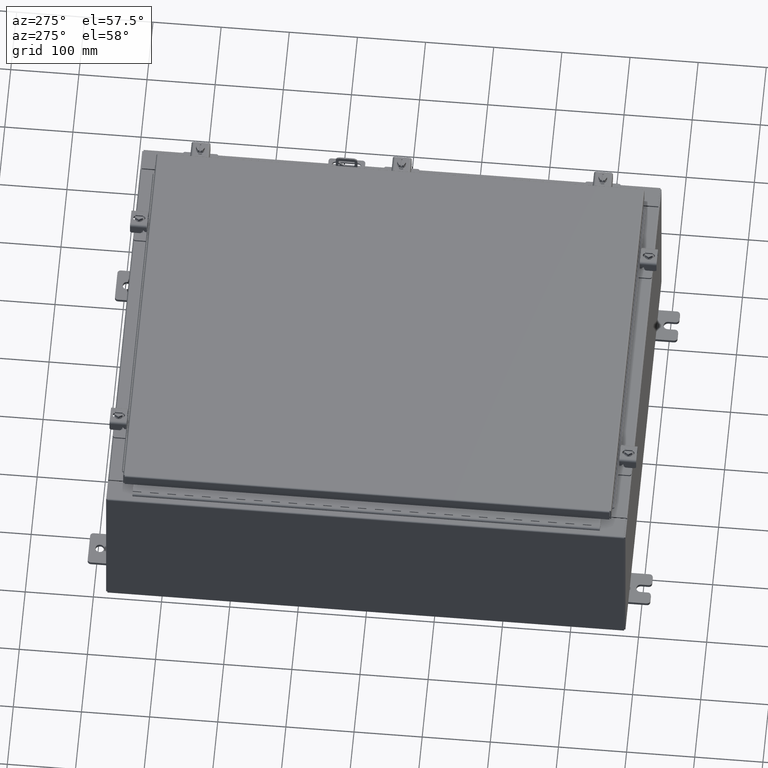
[diagram: clean part render]
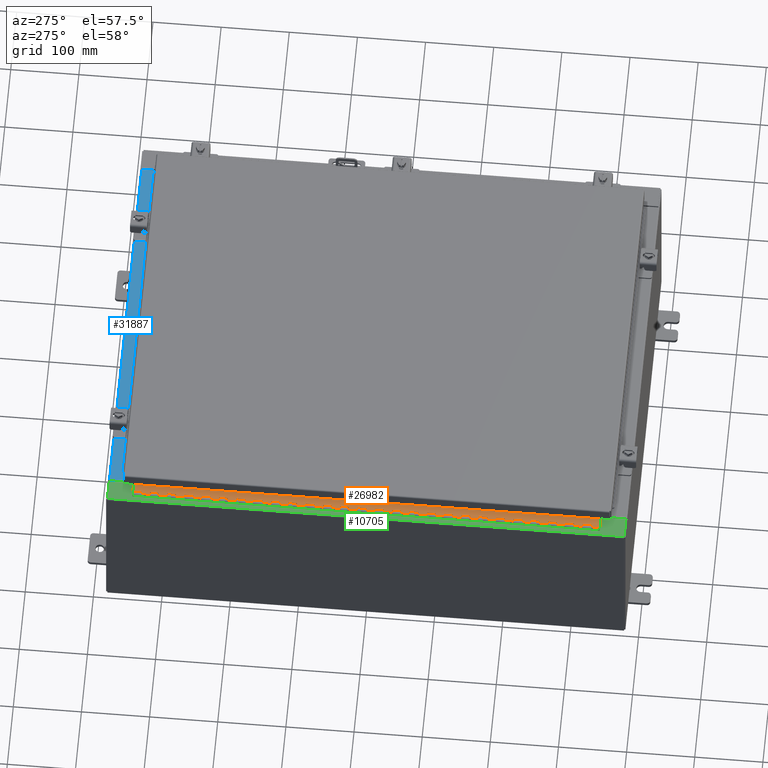
[diagram: same view with three faces highlighted in distinct colors, each labeled with its STEP entity id]
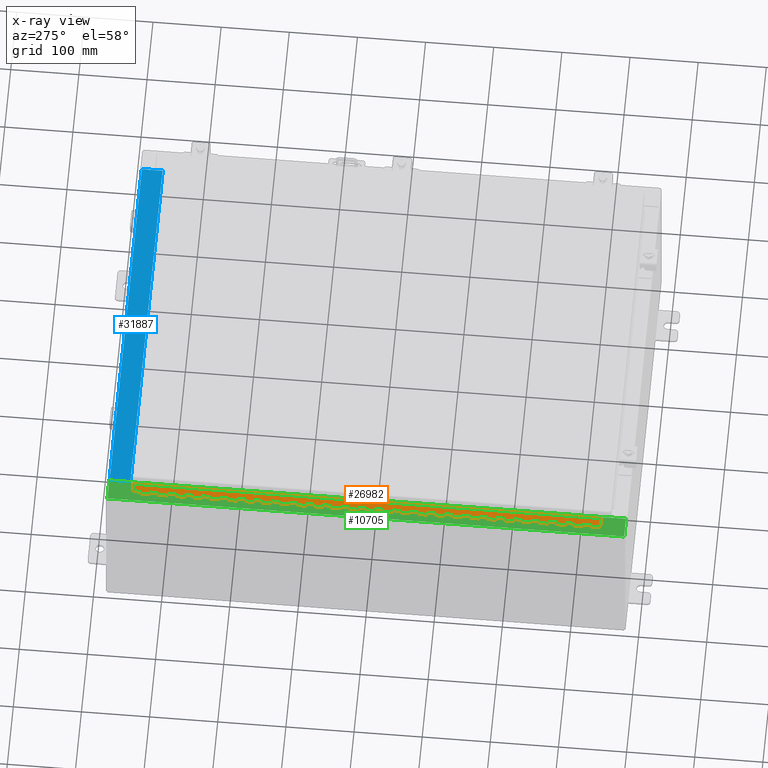
[diagram: x-ray of the same camera — body ghosted, the three highlighted faces saturated]
A machine part, auxiliary view with three faces highlighted in distinct colors.
The next image is the same camera in x-ray (body ghosted, the three faces saturated) — at least one of them is partly hidden behind the body in this view.
Their STEP definitions:

[orange] entity #26982 — the highlighted planar face has unit normal (-0, -0, 1).
#17 = VERTEX_POINT ( 'NONE', #12927 ) ;
#74 = LINE ( 'NONE', #4964, #34973 ) ;
#109 = CARTESIAN_POINT ( 'NONE',  ( -0.6869999999999978300, 0.6754999999999996600, -27.00000000000000000 ) ) ;
#147 = CARTESIAN_POINT ( 'NONE',  ( -0.6869999999999978300, 0.6754999999999996600, -21.50000000000000400 ) ) ;
#241 = CARTESIAN_POINT ( 'NONE',  ( -0.6869999999999982800, 0.5504999999999997700, -21.50000000000000400 ) ) ;
#322 = VECTOR ( 'NONE', #27690, 39.37007874015748100 ) ;
#385 = LINE ( 'NONE', #16533, #6645 ) ;
#463 = CARTESIAN_POINT ( 'NONE',  ( -0.6869999999999973900, 0.8004999999999995500, -19.50000000000000000 ) ) ;
#466 = ORIENTED_EDGE ( 'NONE', *, *, #10400, .T. ) ;
#534 = LINE ( 'NONE', #20820, #17405 ) ;
#585 = LINE ( 'NONE', #5894, #6644 ) ;
#619 = EDGE_CURVE ( 'NONE', #30505, #1648, #17698, .T. ) ;
#665 = ORIENTED_EDGE ( 'NONE', *, *, #23154, .F. ) ;
#768 = CARTESIAN_POINT ( 'NONE',  ( -0.6869999999999982800, 0.5504999999999997700, -19.50000000000000000 ) ) ;
#794 = ORIENTED_EDGE ( 'NONE', *, *, #10684, .F. ) ;
#826 = LINE ( 'NONE', #2184, #4162 ) ;
#830 = VERTEX_POINT ( 'NONE', #36435 ) ;
#854 = DIRECTION ( 'NONE',  ( 3.389037039080723100E-015, 1.000000000000000000, -0.0000000000000000000 ) ) ;
#880 = LINE ( 'NONE', #24289, #24825 ) ;
#1003 = DIRECTION ( 'NONE',  ( -3.389037039080723100E-015, -1.000000000000000000, 0.0000000000000000000 ) ) ;
#1035 = FACE_OUTER_BOUND ( 'NONE', #31580, .T. ) ;
#1097 = LINE ( 'NONE', #21400, #5153 ) ;
#1122 = VECTOR ( 'NONE', #5578, 39.37007874015748100 ) ;
#1228 = CARTESIAN_POINT ( 'NONE',  ( -0.6869999999999978300, 0.6754999999999996600, -27.00000000000000000 ) ) ;
#1285 = LINE ( 'NONE', #2743, #322 ) ;
#1414 = VERTEX_POINT ( 'NONE', #1433 ) ;
#1433 = CARTESIAN_POINT ( 'NONE',  ( -0.6869999999999978300, 0.6754999999999996600, -23.00000000000000000 ) ) ;
#1496 = CARTESIAN_POINT ( 'NONE',  ( -0.6869999999999978300, 0.6754999999999996600, -27.00000000000000000 ) ) ;
#1537 = CARTESIAN_POINT ( 'NONE',  ( -0.6869999999999982800, 0.5504999999999997700, -16.50000000000000000 ) ) ;
#1541 = VERTEX_POINT ( 'NONE', #5306 ) ;
#1548 = EDGE_CURVE ( 'NONE', #14610, #31698, #27824, .T. ) ;
#1581 = ORIENTED_EDGE ( 'NONE', *, *, #19316, .F. ) ;
#1593 = VERTEX_POINT ( 'NONE', #25523 ) ;
#1610 = ORIENTED_EDGE ( 'NONE', *, *, #10634, .T. ) ;
#1648 = VERTEX_POINT ( 'NONE', #23512 ) ;
#1719 = CARTESIAN_POINT ( 'NONE',  ( -0.6869999999999978300, 0.6754999999999996600, -16.00000000000000000 ) ) ;
#1740 = ORIENTED_EDGE ( 'NONE', *, *, #9059, .T. ) ;
#1759 = VECTOR ( 'NONE', #8694, 39.37007874015748100 ) ;
#1764 = DIRECTION ( 'NONE',  ( 0.0000000000000000000, -0.0000000000000000000, -1.000000000000000000 ) ) ;
#1786 = LINE ( 'NONE', #20457, #34701 ) ;
#1880 = CARTESIAN_POINT ( 'NONE',  ( -0.6869999999999978300, 0.6754999999999996600, -27.00000000000000000 ) ) ;
#1894 = VECTOR ( 'NONE', #11575, 39.37007874015748100 ) ;
#1935 = CARTESIAN_POINT ( 'NONE',  ( -0.6869999999999982800, 0.5504999999999997700, -9.000000000000000000 ) ) ;
#1996 = LINE ( 'NONE', #11618, #27589 ) ;
#2033 = VERTEX_POINT ( 'NONE', #28756 ) ;
#2068 = VECTOR ( 'NONE', #33354, 39.37007874015748100 ) ;
#2069 = ORIENTED_EDGE ( 'NONE', *, *, #36780, .F. ) ;
#2095 = CARTESIAN_POINT ( 'NONE',  ( -0.6869999999999973900, 0.8004999999999995500, -20.00000000000000000 ) ) ;
#2129 = CARTESIAN_POINT ( 'NONE',  ( -0.6869999999999978300, 0.6754999999999996600, -11.99999999999999800 ) ) ;
#2143 = VERTEX_POINT ( 'NONE', #13169 ) ;
#2184 = CARTESIAN_POINT ( 'NONE',  ( -0.6869999999999978300, 0.6754999999999996600, -27.00000000000000000 ) ) ;
#2193 = VECTOR ( 'NONE', #23079, 39.37007874015748100 ) ;
#2235 = CARTESIAN_POINT ( 'NONE',  ( -0.6869999999999978300, 0.6754999999999996600, -12.99999999999999800 ) ) ;
#2248 = VERTEX_POINT ( 'NONE', #34766 ) ;
#2276 = LINE ( 'NONE', #19828, #37928 ) ;
#2287 = CARTESIAN_POINT ( 'NONE',  ( -0.6869999999999982800, 0.5504999999999997700, -27.00000000000000000 ) ) ;
#2340 = ORIENTED_EDGE ( 'NONE', *, *, #8356, .F. ) ;
#2347 = VECTOR ( 'NONE', #16992, 39.37007874015748100 ) ;
#2569 = LINE ( 'NONE', #11022, #14638 ) ;
#2589 = LINE ( 'NONE', #26576, #31291 ) ;
#2654 = DIRECTION ( 'NONE',  ( 3.389037039080723100E-015, 1.000000000000000000, -0.0000000000000000000 ) ) ;
#2743 = CARTESIAN_POINT ( 'NONE',  ( -0.6869999999999973900, 0.8004999999999995500, -16.00000000000000000 ) ) ;
#2753 = EDGE_CURVE ( 'NONE', #37920, #37550, #385, .T. ) ;
#2804 = CARTESIAN_POINT ( 'NONE',  ( -0.6869999999999973900, 0.8004999999999995500, -26.50000000000000400 ) ) ;
#2843 = DIRECTION ( 'NONE',  ( 0.0000000000000000000, -0.0000000000000000000, -1.000000000000000000 ) ) ;
#2895 = VERTEX_POINT ( 'NONE', #10281 ) ;
#2898 = CARTESIAN_POINT ( 'NONE',  ( -0.6869999999999978300, 0.6754999999999996600, -19.00000000000000000 ) ) ;
#2943 = LINE ( 'NONE', #9789, #25771 ) ;
#3003 = ORIENTED_EDGE ( 'NONE', *, *, #20133, .F. ) ;
#3034 = EDGE_CURVE ( 'NONE', #35204, #23198, #18673, .T. ) ;
#3064 = DIRECTION ( 'NONE',  ( 3.389037039080723100E-015, 1.000000000000000000, -0.0000000000000000000 ) ) ;
#3180 = CARTESIAN_POINT ( 'NONE',  ( -0.6869999999999982800, 0.5504999999999997700, -20.50000000000000400 ) ) ;
#3220 = ORIENTED_EDGE ( 'NONE', *, *, #4889, .F. ) ;
#3227 = CARTESIAN_POINT ( 'NONE',  ( -0.6869999999999982800, 0.5504999999999997700, -8.000000000000000000 ) ) ;
#3236 = CARTESIAN_POINT ( 'NONE',  ( -0.6869999999999978300, 0.6754999999999996600, -24.50000000000000000 ) ) ;
#3264 = CARTESIAN_POINT ( 'NONE',  ( -0.6869999999999982800, 0.5504999999999997700, -4.500000000000000000 ) ) ;
#3316 = CARTESIAN_POINT ( 'NONE',  ( -0.6869999999999982800, 0.5504999999999997700, -8.500000000000000000 ) ) ;
#3326 = DIRECTION ( 'NONE',  ( 0.0000000000000000000, 0.0000000000000000000, 1.000000000000000000 ) ) ;
#3342 = CARTESIAN_POINT ( 'NONE',  ( -0.6869999999999982800, 0.5504999999999997700, -6.499999999999999100 ) ) ;
#3344 = EDGE_CURVE ( 'NONE', #17665, #28333, #35636, .T. ) ;
#3352 = CARTESIAN_POINT ( 'NONE',  ( -0.6869999999999978300, 0.6754999999999996600, -27.00000000000000000 ) ) ;
#3461 = DIRECTION ( 'NONE',  ( -3.389037039080723100E-015, -1.000000000000000000, 0.0000000000000000000 ) ) ;
#3478 = DIRECTION ( 'NONE',  ( 0.0000000000000000000, -0.0000000000000000000, -1.000000000000000000 ) ) ;
#3512 = DIRECTION ( 'NONE',  ( 0.0000000000000000000, 0.0000000000000000000, 1.000000000000000000 ) ) ;
#3515 = CARTESIAN_POINT ( 'NONE',  ( -0.6869999999999978300, 0.6754999999999996600, -27.00000000000000000 ) ) ;
#3583 = EDGE_CURVE ( 'NONE', #37873, #9611, #33154, .T. ) ;
#3648 = VECTOR ( 'NONE', #15957, 39.37007874015748100 ) ;
#3746 = LINE ( 'NONE', #6009, #13997 ) ;
#3810 = VECTOR ( 'NONE', #20407, 39.37007874015748100 ) ;
#3859 = CARTESIAN_POINT ( 'NONE',  ( -0.6869999999999982800, 0.5504999999999997700, -20.00000000000000000 ) ) ;
#3953 = CARTESIAN_POINT ( 'NONE',  ( -0.6869999999999973900, 0.8004999999999995500, -14.99999999999999800 ) ) ;
#3989 = ORIENTED_EDGE ( 'NONE', *, *, #11930, .F. ) ;
#4005 = EDGE_CURVE ( 'NONE', #34774, #9406, #1786, .T. ) ;
#4085 = CARTESIAN_POINT ( 'NONE',  ( -0.6869999999999973900, 0.8004999999999995500, -7.000000000000000000 ) ) ;
#4094 = VERTEX_POINT ( 'NONE', #6169 ) ;
#4162 = VECTOR ( 'NONE', #37394, 39.37007874015748100 ) ;
#4194 = DIRECTION ( 'NONE',  ( 0.0000000000000000000, 0.0000000000000000000, 1.000000000000000000 ) ) ;
#4419 = LINE ( 'NONE', #12983, #1894 ) ;
#4456 = LINE ( 'NONE', #6123, #7682 ) ;
#4519 = CARTESIAN_POINT ( 'NONE',  ( -0.6869999999999978300, 0.6754999999999996600, -3.500000000000000000 ) ) ;
#4577 = LINE ( 'NONE', #11205, #14693 ) ;
#4694 = EDGE_CURVE ( 'NONE', #28333, #8074, #33416, .T. ) ;
#4839 = CARTESIAN_POINT ( 'NONE',  ( -0.6869999999999982800, 0.5504999999999997700, -24.50000000000000000 ) ) ;
#4889 = EDGE_CURVE ( 'NONE', #25512, #26600, #15990, .T. ) ;
#4934 = CARTESIAN_POINT ( 'NONE',  ( -0.6869999999999973900, 0.8004999999999995500, -8.500000000000000000 ) ) ;
#4956 = LINE ( 'NONE', #22621, #29658 ) ;
#4964 = CARTESIAN_POINT ( 'NONE',  ( -0.6870000000000022800, -0.6245000000000003900, -27.00000000000000000 ) ) ;
#5080 = CARTESIAN_POINT ( 'NONE',  ( -0.6869999999999978300, 0.6754999999999996600, -17.50000000000000000 ) ) ;
#5101 = EDGE_CURVE ( 'NONE', #2033, #10189, #18446, .T. ) ;
#5149 = VECTOR ( 'NONE', #11176, 39.37007874015748100 ) ;
#5153 = VECTOR ( 'NONE', #34793, 39.37007874015748100 ) ;
#5186 = LINE ( 'NONE', #19456, #28231 ) ;
#5202 = VECTOR ( 'NONE', #5436, 39.37007874015748100 ) ;
#5205 = DIRECTION ( 'NONE',  ( 3.389037039080723100E-015, 1.000000000000000000, -0.0000000000000000000 ) ) ;
#5239 = DIRECTION ( 'NONE',  ( 0.0000000000000000000, -0.0000000000000000000, -1.000000000000000000 ) ) ;
#5306 = CARTESIAN_POINT ( 'NONE',  ( -0.6869999999999982800, 0.5504999999999997700, -18.50000000000000000 ) ) ;
#5316 = VERTEX_POINT ( 'NONE', #23230 ) ;
#5391 = CARTESIAN_POINT ( 'NONE',  ( -0.6869999999999982800, 0.5504999999999997700, -19.50000000000000000 ) ) ;
#5423 = ORIENTED_EDGE ( 'NONE', *, *, #7526, .F. ) ;
#5436 = DIRECTION ( 'NONE',  ( 0.0000000000000000000, 0.0000000000000000000, 1.000000000000000000 ) ) ;
#5437 = CARTESIAN_POINT ( 'NONE',  ( -0.6869999999999973900, 0.8004999999999995500, -24.99999999999999600 ) ) ;
#5452 = EDGE_CURVE ( 'NONE', #31698, #15725, #17135, .T. ) ;
#5528 = ORIENTED_EDGE ( 'NONE', *, *, #30586, .T. ) ;
#5564 = CARTESIAN_POINT ( 'NONE',  ( -0.6869999999999982800, 0.5504999999999997700, -13.50000000000000000 ) ) ;
#5578 = DIRECTION ( 'NONE',  ( 0.0000000000000000000, 0.0000000000000000000, 1.000000000000000000 ) ) ;
#5678 = VECTOR ( 'NONE', #37567, 39.37007874015748100 ) ;
#5777 = VERTEX_POINT ( 'NONE', #32020 ) ;
#5790 = CARTESIAN_POINT ( 'NONE',  ( -0.6870000000000022800, -0.6245000000000003900, -27.00000000000000000 ) ) ;
#5848 = VECTOR ( 'NONE', #3326, 39.37007874015748100 ) ;
#5875 = CARTESIAN_POINT ( 'NONE',  ( -0.6869999999999978300, 0.6754999999999996600, -27.00000000000000000 ) ) ;
#5894 = CARTESIAN_POINT ( 'NONE',  ( -0.6869999999999973900, 0.8004999999999995500, -1.499999999999999800 ) ) ;
#5958 = VECTOR ( 'NONE', #29016, 39.37007874015748100 ) ;
#5973 = EDGE_CURVE ( 'NONE', #8091, #30093, #35498, .T. ) ;
#5994 = CARTESIAN_POINT ( 'NONE',  ( -0.6869999999999978300, 0.6754999999999996600, -4.000000000000000000 ) ) ;
#6009 = CARTESIAN_POINT ( 'NONE',  ( -0.6869999999999973900, 0.8004999999999995500, -12.49999999999999800 ) ) ;
#6013 = DIRECTION ( 'NONE',  ( -3.389037039080723100E-015, -1.000000000000000000, 0.0000000000000000000 ) ) ;
#6021 = VECTOR ( 'NONE', #9596, 39.37007874015748100 ) ;
#6027 = DIRECTION ( 'NONE',  ( -3.389037039080723100E-015, -1.000000000000000000, 0.0000000000000000000 ) ) ;
#6123 = CARTESIAN_POINT ( 'NONE',  ( -0.6869999999999978300, 0.6754999999999996600, -27.00000000000000000 ) ) ;
#6131 = VERTEX_POINT ( 'NONE', #20448 ) ;
#6166 = ORIENTED_EDGE ( 'NONE', *, *, #21690, .F. ) ;
#6169 = CARTESIAN_POINT ( 'NONE',  ( -0.6869999999999978300, 0.6754999999999996600, -7.499999999999999100 ) ) ;
#6170 = LINE ( 'NONE', #27782, #5958 ) ;
#6239 = CARTESIAN_POINT ( 'NONE',  ( -0.6869999999999982800, 0.5504999999999997700, -20.50000000000000400 ) ) ;
#6251 = LINE ( 'NONE', #23165, #22727 ) ;
#6267 = VECTOR ( 'NONE', #37990, 39.37007874015748100 ) ;
#6271 = ORIENTED_EDGE ( 'NONE', *, *, #12152, .F. ) ;
#6308 = CARTESIAN_POINT ( 'NONE',  ( -0.6869999999999982800, 0.5504999999999997700, -9.500000000000000000 ) ) ;
#6349 = DIRECTION ( 'NONE',  ( 0.0000000000000000000, 0.0000000000000000000, 1.000000000000000000 ) ) ;
#6436 = ORIENTED_EDGE ( 'NONE', *, *, #30943, .F. ) ;
#6484 = LINE ( 'NONE', #30807, #14270 ) ;
#6503 = EDGE_CURVE ( 'NONE', #16794, #24883, #4456, .T. ) ;
#6525 = VERTEX_POINT ( 'NONE', #3859 ) ;
#6547 = CARTESIAN_POINT ( 'NONE',  ( -0.6869999999999982800, 0.5504999999999997700, -22.50000000000000000 ) ) ;
#6561 = ORIENTED_EDGE ( 'NONE', *, *, #27287, .F. ) ;
#6627 = ORIENTED_EDGE ( 'NONE', *, *, #36021, .F. ) ;
#6637 = LINE ( 'NONE', #11911, #36606 ) ;
#6644 = VECTOR ( 'NONE', #6027, 39.37007874015748100 ) ;
#6645 = VECTOR ( 'NONE', #24102, 39.37007874015748100 ) ;
#6652 = DIRECTION ( 'NONE',  ( 0.0000000000000000000, 0.0000000000000000000, 1.000000000000000000 ) ) ;
#6789 = VECTOR ( 'NONE', #36052, 39.37007874015748100 ) ;
#6920 = LINE ( 'NONE', #463, #36869 ) ;
#6949 = DIRECTION ( 'NONE',  ( -3.389037039080723100E-015, -1.000000000000000000, 0.0000000000000000000 ) ) ;
#6977 = CARTESIAN_POINT ( 'NONE',  ( -0.6869999999999973900, 0.8004999999999995500, -1.000000000000000000 ) ) ;
#7093 = VERTEX_POINT ( 'NONE', #37223 ) ;
#7211 = VECTOR ( 'NONE', #11983, 39.37007874015748100 ) ;
#7264 = ORIENTED_EDGE ( 'NONE', *, *, #34599, .F. ) ;
#7265 = CARTESIAN_POINT ( 'NONE',  ( -0.6869999999999982800, 0.5504999999999997700, -25.50000000000000400 ) ) ;
#7271 = CARTESIAN_POINT ( 'NONE',  ( -0.6869999999999973900, 0.8004999999999995500, -17.00000000000000000 ) ) ;
#7295 = VERTEX_POINT ( 'NONE', #27206 ) ;
#7299 = VERTEX_POINT ( 'NONE', #26828 ) ;
#7318 = EDGE_CURVE ( 'NONE', #27410, #30640, #880, .T. ) ;
#7328 = LINE ( 'NONE', #35875, #37264 ) ;
#7432 = CARTESIAN_POINT ( 'NONE',  ( -0.6869999999999982800, 0.5504999999999997700, -9.500000000000000000 ) ) ;
#7454 = LINE ( 'NONE', #19805, #15310 ) ;
#7482 = VERTEX_POINT ( 'NONE', #9980 ) ;
#7503 = DIRECTION ( 'NONE',  ( -3.389037039080723100E-015, -1.000000000000000000, 0.0000000000000000000 ) ) ;
#7506 = CARTESIAN_POINT ( 'NONE',  ( -0.6869999999999982800, 0.5504999999999997700, -2.999999999999999600 ) ) ;
#7526 = EDGE_CURVE ( 'NONE', #31471, #30858, #30041, .T. ) ;
#7542 = VECTOR ( 'NONE', #24593, 39.37007874015748100 ) ;
#7543 = EDGE_CURVE ( 'NONE', #13042, #17471, #25819, .T. ) ;
#7618 = EDGE_CURVE ( 'NONE', #31263, #16122, #585, .T. ) ;
#7625 = LINE ( 'NONE', #35576, #3810 ) ;
#7638 = DIRECTION ( 'NONE',  ( 0.0000000000000000000, -0.0000000000000000000, -1.000000000000000000 ) ) ;
#7650 = EDGE_CURVE ( 'NONE', #2895, #30079, #21544, .T. ) ;
#7676 = ORIENTED_EDGE ( 'NONE', *, *, #12256, .F. ) ;
#7682 = VECTOR ( 'NONE', #3512, 39.37007874015748100 ) ;
#7740 = CARTESIAN_POINT ( 'NONE',  ( -0.6869999999999982800, 0.5504999999999997700, -4.000000000000000000 ) ) ;
#7742 = VERTEX_POINT ( 'NONE', #30392 ) ;
#7921 = LINE ( 'NONE', #4085, #24667 ) ;
#7946 = LINE ( 'NONE', #29744, #8731 ) ;
#7956 = EDGE_CURVE ( 'NONE', #8091, #9611, #4419, .T. ) ;
#7959 = VERTEX_POINT ( 'NONE', #3236 ) ;
#8054 = EDGE_CURVE ( 'NONE', #35775, #29422, #6170, .T. ) ;
#8074 = VERTEX_POINT ( 'NONE', #27049 ) ;
#8091 = VERTEX_POINT ( 'NONE', #23130 ) ;
#8173 = VERTEX_POINT ( 'NONE', #10414 ) ;
#8211 = LINE ( 'NONE', #13379, #14335 ) ;
#8216 = ORIENTED_EDGE ( 'NONE', *, *, #37836, .T. ) ;
#8218 = VECTOR ( 'NONE', #11304, 39.37007874015748100 ) ;
#8356 = EDGE_CURVE ( 'NONE', #16794, #21717, #10292, .T. ) ;
#8539 = VECTOR ( 'NONE', #27076, 39.37007874015748100 ) ;
#8552 = CARTESIAN_POINT ( 'NONE',  ( -0.6869999999999982800, 0.5504999999999997700, -14.00000000000000000 ) ) ;
#8571 = CARTESIAN_POINT ( 'NONE',  ( -0.6869999999999973900, 0.8004999999999995500, -23.00000000000000000 ) ) ;
#8582 = CARTESIAN_POINT ( 'NONE',  ( -0.6869999999999978300, 0.6754999999999996600, -22.00000000000000000 ) ) ;
#8677 = CARTESIAN_POINT ( 'NONE',  ( -0.6869999999999978300, 0.6754999999999996600, -8.500000000000000000 ) ) ;
#8694 = DIRECTION ( 'NONE',  ( 3.389037039080723100E-015, 1.000000000000000000, -0.0000000000000000000 ) ) ;
#8731 = VECTOR ( 'NONE', #12835, 39.37007874015748100 ) ;
#8743 = EDGE_CURVE ( 'NONE', #8173, #14610, #9344, .T. ) ;
#8774 = ORIENTED_EDGE ( 'NONE', *, *, #29196, .F. ) ;
#8834 = VECTOR ( 'NONE', #23378, 39.37007874015748100 ) ;
#8840 = CARTESIAN_POINT ( 'NONE',  ( -0.6869999999999978300, 0.6754999999999996600, -13.50000000000000000 ) ) ;
#8849 = LINE ( 'NONE', #36454, #15477 ) ;
#8860 = CARTESIAN_POINT ( 'NONE',  ( -0.6869999999999978300, 0.6754999999999996600, -27.00000000000000000 ) ) ;
#8917 = CARTESIAN_POINT ( 'NONE',  ( -0.6869999999999982800, 0.5504999999999997700, -5.500000000000000000 ) ) ;
#8924 = VERTEX_POINT ( 'NONE', #1719 ) ;
#8960 = EDGE_CURVE ( 'NONE', #22151, #34774, #19769, .T. ) ;
#8989 = EDGE_CURVE ( 'NONE', #30654, #1648, #33005, .T. ) ;
#9029 = VECTOR ( 'NONE', #30326, 39.37007874015748100 ) ;
#9059 = EDGE_CURVE ( 'NONE', #2143, #13879, #18013, .T. ) ;
#9127 = EDGE_CURVE ( 'NONE', #30505, #19996, #11227, .T. ) ;
#9153 = EDGE_CURVE ( 'NONE', #830, #5316, #16084, .T. ) ;
#9189 = ORIENTED_EDGE ( 'NONE', *, *, #26972, .F. ) ;
#9237 = VERTEX_POINT ( 'NONE', #28011 ) ;
#9245 = EDGE_CURVE ( 'NONE', #17471, #34572, #8211, .T. ) ;
#9344 = LINE ( 'NONE', #23138, #3648 ) ;
#9367 = LINE ( 'NONE', #24152, #1759 ) ;
#9391 = DIRECTION ( 'NONE',  ( 3.389037039080723100E-015, 1.000000000000000000, -0.0000000000000000000 ) ) ;
#9406 = VERTEX_POINT ( 'NONE', #35191 ) ;
#9505 = VECTOR ( 'NONE', #27478, 39.37007874015748100 ) ;
#9510 = CARTESIAN_POINT ( 'NONE',  ( -0.6869999999999978300, 0.6754999999999996600, -0.5000000000000000000 ) ) ;
#9596 = DIRECTION ( 'NONE',  ( -3.389037039080723100E-015, -1.000000000000000000, 0.0000000000000000000 ) ) ;
#9611 = VERTEX_POINT ( 'NONE', #8582 ) ;
#9620 = DIRECTION ( 'NONE',  ( 3.389037039080723100E-015, 1.000000000000000000, -0.0000000000000000000 ) ) ;
#9707 = CARTESIAN_POINT ( 'NONE',  ( -0.6869999999999978300, 0.6754999999999996600, -27.00000000000000000 ) ) ;
#9730 = ORIENTED_EDGE ( 'NONE', *, *, #19491, .F. ) ;
#9746 = VERTEX_POINT ( 'NONE', #37904 ) ;
#9789 = CARTESIAN_POINT ( 'NONE',  ( -0.6869999999999973900, 0.8004999999999995500, -11.99999999999999800 ) ) ;
#9803 = DIRECTION ( 'NONE',  ( 3.389037039080723100E-015, 1.000000000000000000, -0.0000000000000000000 ) ) ;
#9834 = LINE ( 'NONE', #6977, #32345 ) ;
#9859 = VECTOR ( 'NONE', #19788, 39.37007874015748100 ) ;
#9920 = ORIENTED_EDGE ( 'NONE', *, *, #30764, .F. ) ;
#9941 = LINE ( 'NONE', #25255, #35859 ) ;
#9980 = CARTESIAN_POINT ( 'NONE',  ( -0.6869999999999978300, 0.6754999999999996600, -15.50000000000000000 ) ) ;
#10020 = CARTESIAN_POINT ( 'NONE',  ( -0.6869999999999982800, 0.5504999999999997700, -1.499999999999999800 ) ) ;
#10126 = VERTEX_POINT ( 'NONE', #24384 ) ;
#10189 = VERTEX_POINT ( 'NONE', #2898 ) ;
#10253 = ORIENTED_EDGE ( 'NONE', *, *, #36370, .F. ) ;
#10281 = CARTESIAN_POINT ( 'NONE',  ( -0.6869999999999978300, 0.6754999999999996600, -5.500000000000000000 ) ) ;
#10292 = LINE ( 'NONE', #15435, #20349 ) ;
#10336 = CARTESIAN_POINT ( 'NONE',  ( -0.6869999999999982800, 0.5504999999999997700, -12.49999999999999800 ) ) ;
#10356 = DIRECTION ( 'NONE',  ( 3.389037039080723100E-015, 1.000000000000000000, -0.0000000000000000000 ) ) ;
#10400 = EDGE_CURVE ( 'NONE', #7482, #15725, #4577, .T. ) ;
#10413 = ORIENTED_EDGE ( 'NONE', *, *, #11744, .T. ) ;
#10414 = CARTESIAN_POINT ( 'NONE',  ( -0.6869999999999978300, 0.6754999999999996600, -14.49999999999999800 ) ) ;
#10634 = EDGE_CURVE ( 'NONE', #27410, #34572, #74, .T. ) ;
#10684 = EDGE_CURVE ( 'NONE', #37550, #33142, #5186, .T. ) ;
#10722 = ORIENTED_EDGE ( 'NONE', *, *, #11617, .F. ) ;
#10810 = EDGE_CURVE ( 'NONE', #19996, #19781, #2276, .T. ) ;
#10853 = VERTEX_POINT ( 'NONE', #27107 ) ;
#10895 = DIRECTION ( 'NONE',  ( 3.369016658928398200E-015, 1.000000000000000000, 0.0000000000000000000 ) ) ;
#10921 = CARTESIAN_POINT ( 'NONE',  ( -0.6869999999999982800, 0.5504999999999997700, -18.50000000000000000 ) ) ;
#10931 = ORIENTED_EDGE ( 'NONE', *, *, #35212, .F. ) ;
#10999 = CARTESIAN_POINT ( 'NONE',  ( -0.6869999999999973900, 0.8004999999999995500, -22.00000000000000000 ) ) ;
#11020 = DIRECTION ( 'NONE',  ( 0.0000000000000000000, 0.0000000000000000000, 1.000000000000000000 ) ) ;
#11022 = CARTESIAN_POINT ( 'NONE',  ( -0.6869999999999982800, 0.5504999999999997700, -23.50000000000000000 ) ) ;
#11119 = LINE ( 'NONE', #21703, #7211 ) ;
#11158 = EDGE_CURVE ( 'NONE', #25512, #16039, #22867, .T. ) ;
#11160 = LINE ( 'NONE', #109, #5848 ) ;
#11162 = CARTESIAN_POINT ( 'NONE',  ( -0.6869999999999982800, 0.5504999999999997700, -13.50000000000000000 ) ) ;
#11176 = DIRECTION ( 'NONE',  ( 0.0000000000000000000, 0.0000000000000000000, 1.000000000000000000 ) ) ;
#11205 = CARTESIAN_POINT ( 'NONE',  ( -0.6869999999999978300, 0.6754999999999996600, -27.00000000000000000 ) ) ;
#11227 = LINE ( 'NONE', #27012, #35067 ) ;
#11304 = DIRECTION ( 'NONE',  ( 0.0000000000000000000, 0.0000000000000000000, 1.000000000000000000 ) ) ;
#11319 = EDGE_CURVE ( 'NONE', #2895, #34165, #24227, .T. ) ;
#11397 = ORIENTED_EDGE ( 'NONE', *, *, #16997, .F. ) ;
#11426 = VERTEX_POINT ( 'NONE', #11162 ) ;
#11556 = DIRECTION ( 'NONE',  ( 3.389037039080723100E-015, 1.000000000000000000, -0.0000000000000000000 ) ) ;
#11559 = LINE ( 'NONE', #32825, #8218 ) ;
#11565 = LINE ( 'NONE', #5875, #1122 ) ;
#11575 = DIRECTION ( 'NONE',  ( 0.0000000000000000000, 0.0000000000000000000, 1.000000000000000000 ) ) ;
#11617 = EDGE_CURVE ( 'NONE', #28715, #16039, #1097, .T. ) ;
#11618 = CARTESIAN_POINT ( 'NONE',  ( -0.6869999999999982800, 0.5504999999999997700, -17.50000000000000000 ) ) ;
#11699 = DIRECTION ( 'NONE',  ( -3.389037039080723100E-015, -1.000000000000000000, 0.0000000000000000000 ) ) ;
#11724 = CARTESIAN_POINT ( 'NONE',  ( -0.6869999999999973900, 0.8004999999999995500, -4.500000000000000000 ) ) ;
#11744 = EDGE_CURVE ( 'NONE', #15048, #16250, #13894, .T. ) ;
#11757 = CARTESIAN_POINT ( 'NONE',  ( -0.6869999999999982800, 0.5504999999999997700, -0.5000000000000000000 ) ) ;
#11857 = ORIENTED_EDGE ( 'NONE', *, *, #29650, .F. ) ;
#11886 = DIRECTION ( 'NONE',  ( 0.0000000000000000000, -0.0000000000000000000, -1.000000000000000000 ) ) ;
#11892 = CARTESIAN_POINT ( 'NONE',  ( -0.6869999999999978300, 0.6754999999999996600, -17.00000000000000000 ) ) ;
#11895 = LINE ( 'NONE', #24184, #2068 ) ;
#11911 = CARTESIAN_POINT ( 'NONE',  ( -0.6869999999999973900, 0.8004999999999995500, -11.00000000000000000 ) ) ;
#11930 = EDGE_CURVE ( 'NONE', #18596, #31471, #14741, .T. ) ;
#11983 = DIRECTION ( 'NONE',  ( 0.0000000000000000000, -0.0000000000000000000, -1.000000000000000000 ) ) ;
#11991 = ORIENTED_EDGE ( 'NONE', *, *, #33571, .F. ) ;
#12072 = VECTOR ( 'NONE', #36017, 39.37007874015748100 ) ;
#12073 = ORIENTED_EDGE ( 'NONE', *, *, #19748, .T. ) ;
#12108 = CARTESIAN_POINT ( 'NONE',  ( -0.6869999999999978300, 0.6754999999999996600, -27.00000000000000000 ) ) ;
#12152 = EDGE_CURVE ( 'NONE', #24900, #25900, #30925, .T. ) ;
#12167 = CARTESIAN_POINT ( 'NONE',  ( -0.6869999999999973900, 0.8004999999999995500, -9.500000000000000000 ) ) ;
#12223 = CARTESIAN_POINT ( 'NONE',  ( -0.6869999999999982800, 0.5504999999999997700, -26.00000000000000000 ) ) ;
#12256 = EDGE_CURVE ( 'NONE', #30093, #7742, #33149, .T. ) ;
#12327 = DIRECTION ( 'NONE',  ( -3.389037039080723100E-015, -1.000000000000000000, 0.0000000000000000000 ) ) ;
#12428 = CARTESIAN_POINT ( 'NONE',  ( -0.6870000000000022800, -0.6245000000000003900, 0.0000000000000000000 ) ) ;
#12434 = CARTESIAN_POINT ( 'NONE',  ( -0.6869999999999978300, 0.6754999999999996600, -14.99999999999999800 ) ) ;
#12557 = LINE ( 'NONE', #3352, #18594 ) ;
#12675 = CARTESIAN_POINT ( 'NONE',  ( -0.6869999999999982800, 0.5504999999999997700, -2.000000000000000000 ) ) ;
#12692 = EDGE_CURVE ( 'NONE', #830, #16688, #29975, .T. ) ;
#12749 = CARTESIAN_POINT ( 'NONE',  ( -0.6869999999999982800, 0.5504999999999997700, -0.5000000000000000000 ) ) ;
#12762 = ORIENTED_EDGE ( 'NONE', *, *, #25096, .F. ) ;
#12835 = DIRECTION ( 'NONE',  ( -3.389037039080723100E-015, -1.000000000000000000, 0.0000000000000000000 ) ) ;
#12836 = EDGE_CURVE ( 'NONE', #35775, #8924, #11895, .T. ) ;
#12854 = ORIENTED_EDGE ( 'NONE', *, *, #22639, .T. ) ;
#12873 = EDGE_CURVE ( 'NONE', #17, #7295, #21219, .T. ) ;
#12917 = DIRECTION ( 'NONE',  ( 3.389037039080723100E-015, 1.000000000000000000, -0.0000000000000000000 ) ) ;
#12921 = CARTESIAN_POINT ( 'NONE',  ( -0.6869999999999978300, 0.6754999999999996600, -27.00000000000000000 ) ) ;
#12927 = CARTESIAN_POINT ( 'NONE',  ( -0.6869999999999982800, 0.5504999999999997700, -21.00000000000000000 ) ) ;
#12983 = CARTESIAN_POINT ( 'NONE',  ( -0.6869999999999978300, 0.6754999999999996600, -27.00000000000000000 ) ) ;
#13042 = VERTEX_POINT ( 'NONE', #26665 ) ;
#13079 = VECTOR ( 'NONE', #6652, 39.37007874015748100 ) ;
#13169 = CARTESIAN_POINT ( 'NONE',  ( -0.6869999999999978300, 0.6754999999999996600, -12.49999999999999800 ) ) ;
#13214 = DIRECTION ( 'NONE',  ( 3.389037039080723100E-015, 1.000000000000000000, -0.0000000000000000000 ) ) ;
#13231 = EDGE_CURVE ( 'NONE', #8074, #30079, #32165, .T. ) ;
#13379 = CARTESIAN_POINT ( 'NONE',  ( -0.6869999999999982800, 0.5504999999999997700, -26.50000000000000400 ) ) ;
#13494 = ORIENTED_EDGE ( 'NONE', *, *, #8054, .F. ) ;
#13501 = ORIENTED_EDGE ( 'NONE', *, *, #7318, .F. ) ;
#13636 = ORIENTED_EDGE ( 'NONE', *, *, #23275, .F. ) ;
#13739 = ORIENTED_EDGE ( 'NONE', *, *, #27396, .F. ) ;
#13768 = DIRECTION ( 'NONE',  ( -3.389037039080723100E-015, -1.000000000000000000, 0.0000000000000000000 ) ) ;
#13850 = PLANE ( 'NONE',  #26835 ) ;
#13879 = VERTEX_POINT ( 'NONE', #2129 ) ;
#13894 = LINE ( 'NONE', #8860, #31847 ) ;
#13913 = EDGE_CURVE ( 'NONE', #7482, #36341, #7946, .T. ) ;
#13927 = CARTESIAN_POINT ( 'NONE',  ( -0.6869999999999982800, 0.5504999999999997700, -15.50000000000000000 ) ) ;
#13935 = VERTEX_POINT ( 'NONE', #8840 ) ;
#13997 = VECTOR ( 'NONE', #6013, 39.37007874015748100 ) ;
#14046 = VECTOR ( 'NONE', #35339, 39.37007874015748100 ) ;
#14065 = CARTESIAN_POINT ( 'NONE',  ( -0.6869999999999982800, 0.5504999999999997700, -14.49999999999999800 ) ) ;
#14091 = CARTESIAN_POINT ( 'NONE',  ( -0.6869999999999982800, 0.5504999999999997700, -17.00000000000000000 ) ) ;
#14120 = VERTEX_POINT ( 'NONE', #14670 ) ;
#14182 = VERTEX_POINT ( 'NONE', #26518 ) ;
#14270 = VECTOR ( 'NONE', #33786, 39.37007874015748100 ) ;
#14335 = VECTOR ( 'NONE', #36848, 39.37007874015748100 ) ;
#14372 = ORIENTED_EDGE ( 'NONE', *, *, #23417, .T. ) ;
#14463 = VECTOR ( 'NONE', #1764, 39.37007874015748100 ) ;
#14610 = VERTEX_POINT ( 'NONE', #15421 ) ;
#14638 = VECTOR ( 'NONE', #15753, 39.37007874015748100 ) ;
#14648 = ORIENTED_EDGE ( 'NONE', *, *, #24779, .T. ) ;
#14670 = CARTESIAN_POINT ( 'NONE',  ( -0.6869999999999978300, 0.6754999999999996600, -9.000000000000000000 ) ) ;
#14679 = CARTESIAN_POINT ( 'NONE',  ( -0.6869999999999982800, 0.5504999999999997700, -16.50000000000000000 ) ) ;
#14693 = VECTOR ( 'NONE', #15122, 39.37007874015748100 ) ;
#14741 = LINE ( 'NONE', #31219, #29493 ) ;
#14803 = CARTESIAN_POINT ( 'NONE',  ( -0.6869999999999982800, 0.5504999999999997700, -24.99999999999999600 ) ) ;
#15019 = VERTEX_POINT ( 'NONE', #14091 ) ;
#15044 = VECTOR ( 'NONE', #33345, 39.37007874015748100 ) ;
#15048 = VERTEX_POINT ( 'NONE', #30309 ) ;
#15110 = VECTOR ( 'NONE', #27964, 39.37007874015748100 ) ;
#15122 = DIRECTION ( 'NONE',  ( 0.0000000000000000000, 0.0000000000000000000, 1.000000000000000000 ) ) ;
#15170 = CARTESIAN_POINT ( 'NONE',  ( -0.6869999999999973900, 0.8004999999999995500, -19.00000000000000000 ) ) ;
#15198 = ORIENTED_EDGE ( 'NONE', *, *, #36033, .F. ) ;
#15216 = ORIENTED_EDGE ( 'NONE', *, *, #33348, .F. ) ;
#15310 = VECTOR ( 'NONE', #11020, 39.37007874015748100 ) ;
#15312 = ORIENTED_EDGE ( 'NONE', *, *, #11158, .T. ) ;
#15339 = VECTOR ( 'NONE', #15618, 39.37007874015748100 ) ;
#15343 = VECTOR ( 'NONE', #23507, 39.37007874015748100 ) ;
#15380 = ORIENTED_EDGE ( 'NONE', *, *, #9245, .F. ) ;
#15385 = DIRECTION ( 'NONE',  ( 3.389037039080723100E-015, 1.000000000000000000, -0.0000000000000000000 ) ) ;
#15386 = LINE ( 'NONE', #5564, #2347 ) ;
#15421 = CARTESIAN_POINT ( 'NONE',  ( -0.6869999999999982800, 0.5504999999999997700, -14.49999999999999800 ) ) ;
#15435 = CARTESIAN_POINT ( 'NONE',  ( -0.6869999999999973900, 0.8004999999999995500, -11.50000000000000000 ) ) ;
#15474 = EDGE_CURVE ( 'NONE', #6131, #14120, #6251, .T. ) ;
#15477 = VECTOR ( 'NONE', #18824, 39.37007874015748100 ) ;
#15490 = CARTESIAN_POINT ( 'NONE',  ( -0.6869999999999982800, 0.5504999999999997700, -1.000000000000000000 ) ) ;
#15591 = VECTOR ( 'NONE', #7503, 39.37007874015748100 ) ;
#15605 = CARTESIAN_POINT ( 'NONE',  ( -0.6869999999999973900, 0.8004999999999995500, -24.50000000000000000 ) ) ;
#15618 = DIRECTION ( 'NONE',  ( 3.389037039080723100E-015, 1.000000000000000000, -0.0000000000000000000 ) ) ;
#15634 = ORIENTED_EDGE ( 'NONE', *, *, #20421, .F. ) ;
#15692 = LINE ( 'NONE', #19982, #33492 ) ;
#15725 = VERTEX_POINT ( 'NONE', #12434 ) ;
#15753 = DIRECTION ( 'NONE',  ( 0.0000000000000000000, -0.0000000000000000000, -1.000000000000000000 ) ) ;
#15908 = VERTEX_POINT ( 'NONE', #15490 ) ;
#15915 = CARTESIAN_POINT ( 'NONE',  ( -0.6869999999999973900, 0.8004999999999995500, -10.50000000000000000 ) ) ;
#15957 = DIRECTION ( 'NONE',  ( -3.389037039080723100E-015, -1.000000000000000000, 0.0000000000000000000 ) ) ;
#15990 = LINE ( 'NONE', #4934, #28690 ) ;
#15994 = CARTESIAN_POINT ( 'NONE',  ( -0.6869999999999982800, 0.5504999999999997700, -22.00000000000000000 ) ) ;
#16033 = DIRECTION ( 'NONE',  ( -3.389037039080723100E-015, -1.000000000000000000, 0.0000000000000000000 ) ) ;
#16039 = VERTEX_POINT ( 'NONE', #36382 ) ;
#16084 = LINE ( 'NONE', #15915, #30838 ) ;
#16122 = VERTEX_POINT ( 'NONE', #10020 ) ;
#16163 = ORIENTED_EDGE ( 'NONE', *, *, #20366, .F. ) ;
#16191 = ORIENTED_EDGE ( 'NONE', *, *, #4005, .F. ) ;
#16207 = CARTESIAN_POINT ( 'NONE',  ( -0.6869999999999973900, 0.8004999999999995500, -2.000000000000000000 ) ) ;
#16250 = VERTEX_POINT ( 'NONE', #19665 ) ;
#16395 = LINE ( 'NONE', #3515, #16456 ) ;
#16455 = CARTESIAN_POINT ( 'NONE',  ( -0.6869999999999982800, 0.5504999999999997700, -2.500000000000000000 ) ) ;
#16456 = VECTOR ( 'NONE', #24345, 39.37007874015748100 ) ;
#16461 = CARTESIAN_POINT ( 'NONE',  ( -0.6869999999999982800, 0.5504999999999997700, -7.499999999999999100 ) ) ;
#16533 = CARTESIAN_POINT ( 'NONE',  ( -0.6869999999999982800, 0.5504999999999997700, -12.49999999999999800 ) ) ;
#16562 = LINE ( 'NONE', #37135, #16762 ) ;
#16608 = DIRECTION ( 'NONE',  ( 0.0000000000000000000, -0.0000000000000000000, -1.000000000000000000 ) ) ;
#16627 = DIRECTION ( 'NONE',  ( 0.0000000000000000000, 0.0000000000000000000, 1.000000000000000000 ) ) ;
#16637 = CARTESIAN_POINT ( 'NONE',  ( -0.6869999999999982800, 0.5504999999999997700, -17.99999999999999600 ) ) ;
#16688 = VERTEX_POINT ( 'NONE', #37095 ) ;
#16757 = CARTESIAN_POINT ( 'NONE',  ( -0.6869999999999973900, 0.8004999999999995500, -4.000000000000000000 ) ) ;
#16762 = VECTOR ( 'NONE', #19856, 39.37007874015748100 ) ;
#16794 = VERTEX_POINT ( 'NONE', #26210 ) ;
#16864 = CARTESIAN_POINT ( 'NONE',  ( -0.6869999999999982800, 0.5504999999999997700, -4.500000000000000000 ) ) ;
#16992 = DIRECTION ( 'NONE',  ( 0.0000000000000000000, -0.0000000000000000000, -1.000000000000000000 ) ) ;
#16996 = CARTESIAN_POINT ( 'NONE',  ( -0.6869999999999978300, 0.6754999999999996600, -27.00000000000000000 ) ) ;
#16997 = EDGE_CURVE ( 'NONE', #7742, #1414, #31480, .T. ) ;
#17030 = EDGE_CURVE ( 'NONE', #13935, #11426, #19527, .T. ) ;
#17126 = VECTOR ( 'NONE', #18069, 39.37007874015748100 ) ;
#17135 = LINE ( 'NONE', #3953, #25361 ) ;
#17144 = LINE ( 'NONE', #34613, #15343 ) ;
#17189 = ORIENTED_EDGE ( 'NONE', *, *, #20610, .T. ) ;
#17210 = EDGE_CURVE ( 'NONE', #31681, #8924, #1285, .T. ) ;
#17309 = VERTEX_POINT ( 'NONE', #36154 ) ;
#17405 = VECTOR ( 'NONE', #11699, 39.37007874015748100 ) ;
#17471 = VERTEX_POINT ( 'NONE', #17836 ) ;
#17603 = LINE ( 'NONE', #22581, #37210 ) ;
#17615 = LINE ( 'NONE', #16461, #9029 ) ;
#17654 = LINE ( 'NONE', #16207, #36977 ) ;
#17665 = VERTEX_POINT ( 'NONE', #28827 ) ;
#17698 = LINE ( 'NONE', #27599, #7542 ) ;
#17816 = VERTEX_POINT ( 'NONE', #8552 ) ;
#17829 = ORIENTED_EDGE ( 'NONE', *, *, #18754, .T. ) ;
#17836 = CARTESIAN_POINT ( 'NONE',  ( -0.6869999999999982800, 0.5504999999999997700, -26.50000000000000400 ) ) ;
#17910 = DIRECTION ( 'NONE',  ( -3.389037039080723100E-015, -1.000000000000000000, 0.0000000000000000000 ) ) ;
#17926 = ORIENTED_EDGE ( 'NONE', *, *, #17030, .F. ) ;
#17942 = EDGE_CURVE ( 'NONE', #13042, #9406, #16395, .T. ) ;
#17979 = ORIENTED_EDGE ( 'NONE', *, *, #12836, .T. ) ;
#18013 = LINE ( 'NONE', #21133, #21832 ) ;
#18048 = VERTEX_POINT ( 'NONE', #18368 ) ;
#18069 = DIRECTION ( 'NONE',  ( 0.0000000000000000000, -0.0000000000000000000, -1.000000000000000000 ) ) ;
#18164 = DIRECTION ( 'NONE',  ( 0.0000000000000000000, 0.0000000000000000000, 1.000000000000000000 ) ) ;
#18191 = DIRECTION ( 'NONE',  ( 0.0000000000000000000, -0.0000000000000000000, -1.000000000000000000 ) ) ;
#18325 = ORIENTED_EDGE ( 'NONE', *, *, #19263, .F. ) ;
#18368 = CARTESIAN_POINT ( 'NONE',  ( -0.6869999999999978300, 0.6754999999999996600, -25.50000000000000400 ) ) ;
#18377 = EDGE_CURVE ( 'NONE', #17816, #2248, #9367, .T. ) ;
#18388 = DIRECTION ( 'NONE',  ( 0.0000000000000000000, -0.0000000000000000000, -1.000000000000000000 ) ) ;
#18446 = LINE ( 'NONE', #15170, #26419 ) ;
#18594 = VECTOR ( 'NONE', #18164, 39.37007874015748100 ) ;
#18596 = VERTEX_POINT ( 'NONE', #20138 ) ;
#18673 = LINE ( 'NONE', #35354, #9505 ) ;
#18725 = CARTESIAN_POINT ( 'NONE',  ( -0.6869999999999982800, 0.5504999999999997700, -2.500000000000000000 ) ) ;
#18754 = EDGE_CURVE ( 'NONE', #34628, #1414, #826, .T. ) ;
#18824 = DIRECTION ( 'NONE',  ( 3.389037039080723100E-015, 1.000000000000000000, -0.0000000000000000000 ) ) ;
#18836 = DIRECTION ( 'NONE',  ( 0.0000000000000000000, -0.0000000000000000000, -1.000000000000000000 ) ) ;
#18858 = ORIENTED_EDGE ( 'NONE', *, *, #21257, .T. ) ;
#19032 = DIRECTION ( 'NONE',  ( -3.389037039080723100E-015, -1.000000000000000000, 0.0000000000000000000 ) ) ;
#19095 = DIRECTION ( 'NONE',  ( 3.389037039080723100E-015, 1.000000000000000000, -0.0000000000000000000 ) ) ;
#19172 = ORIENTED_EDGE ( 'NONE', *, *, #31113, .F. ) ;
#19235 = ORIENTED_EDGE ( 'NONE', *, *, #23135, .F. ) ;
#19263 = EDGE_CURVE ( 'NONE', #36341, #31681, #11119, .T. ) ;
#19316 = EDGE_CURVE ( 'NONE', #18048, #22151, #534, .T. ) ;
#19400 = CARTESIAN_POINT ( 'NONE',  ( -0.6869999999999978300, 0.6754999999999996600, -1.499999999999999800 ) ) ;
#19456 = CARTESIAN_POINT ( 'NONE',  ( -0.6869999999999973900, 0.8004999999999995500, -12.99999999999999800 ) ) ;
#19491 = EDGE_CURVE ( 'NONE', #37231, #36514, #15692, .T. ) ;
#19527 = LINE ( 'NONE', #23665, #32673 ) ;
#19622 = VERTEX_POINT ( 'NONE', #16455 ) ;
#19629 = LINE ( 'NONE', #7271, #36646 ) ;
#19636 = ORIENTED_EDGE ( 'NONE', *, *, #7543, .F. ) ;
#19650 = DIRECTION ( 'NONE',  ( 0.0000000000000000000, -0.0000000000000000000, -1.000000000000000000 ) ) ;
#19665 = CARTESIAN_POINT ( 'NONE',  ( -0.6869999999999978300, 0.6754999999999996600, -20.00000000000000000 ) ) ;
#19675 = EDGE_CURVE ( 'NONE', #19622, #30654, #20847, .T. ) ;
#19748 = EDGE_CURVE ( 'NONE', #17665, #19780, #35170, .T. ) ;
#19769 = LINE ( 'NONE', #7265, #28685 ) ;
#19780 = VERTEX_POINT ( 'NONE', #5994 ) ;
#19781 = VERTEX_POINT ( 'NONE', #7740 ) ;
#19788 = DIRECTION ( 'NONE',  ( -3.389037039080723100E-015, -1.000000000000000000, 0.0000000000000000000 ) ) ;
#19805 = CARTESIAN_POINT ( 'NONE',  ( -0.6869999999999978300, 0.6754999999999996600, -27.00000000000000000 ) ) ;
#19828 = CARTESIAN_POINT ( 'NONE',  ( -0.6869999999999982800, 0.5504999999999997700, -3.500000000000000000 ) ) ;
#19856 = DIRECTION ( 'NONE',  ( 0.0000000000000000000, -0.0000000000000000000, -1.000000000000000000 ) ) ;
#19965 = VECTOR ( 'NONE', #22598, 39.37007874015748100 ) ;
#19982 = CARTESIAN_POINT ( 'NONE',  ( -0.6869999999999973900, 0.8004999999999995500, -0.5000000000000000000 ) ) ;
#19993 = EDGE_CURVE ( 'NONE', #24550, #28715, #17615, .T. ) ;
#19996 = VERTEX_POINT ( 'NONE', #25851 ) ;
#20012 = ORIENTED_EDGE ( 'NONE', *, *, #23196, .T. ) ;
#20075 = CARTESIAN_POINT ( 'NONE',  ( -0.6869999999999982800, 0.5504999999999997700, -12.99999999999999800 ) ) ;
#20098 = VECTOR ( 'NONE', #13768, 39.37007874015748100 ) ;
#20130 = VECTOR ( 'NONE', #18836, 39.37007874015748100 ) ;
#20131 = DIRECTION ( 'NONE',  ( -3.389037039080723100E-015, -1.000000000000000000, 0.0000000000000000000 ) ) ;
#20133 = EDGE_CURVE ( 'NONE', #26600, #23117, #9941, .T. ) ;
#20138 = CARTESIAN_POINT ( 'NONE',  ( -0.6869999999999978300, 0.6754999999999996600, -6.499999999999999100 ) ) ;
#20179 = EDGE_CURVE ( 'NONE', #34598, #19622, #24264, .T. ) ;
#20251 = ORIENTED_EDGE ( 'NONE', *, *, #3583, .F. ) ;
#20324 = LINE ( 'NONE', #25855, #27376 ) ;
#20349 = VECTOR ( 'NONE', #19032, 39.37007874015748100 ) ;
#20366 = EDGE_CURVE ( 'NONE', #19781, #19780, #26205, .T. ) ;
#20400 = CARTESIAN_POINT ( 'NONE',  ( -0.6869999999999978300, 0.6754999999999996600, -2.500000000000000000 ) ) ;
#20407 = DIRECTION ( 'NONE',  ( 0.0000000000000000000, -0.0000000000000000000, -1.000000000000000000 ) ) ;
#20421 = EDGE_CURVE ( 'NONE', #7959, #35094, #37947, .T. ) ;
#20448 = CARTESIAN_POINT ( 'NONE',  ( -0.6869999999999978300, 0.6754999999999996600, -9.500000000000000000 ) ) ;
#20457 = CARTESIAN_POINT ( 'NONE',  ( -0.6869999999999973900, 0.8004999999999995500, -26.00000000000000000 ) ) ;
#20551 = ORIENTED_EDGE ( 'NONE', *, *, #32928, .F. ) ;
#20610 = EDGE_CURVE ( 'NONE', #18048, #14182, #32324, .T. ) ;
#20630 = DIRECTION ( 'NONE',  ( 1.000000000000000000, -3.369016658928398200E-015, 0.0000000000000000000 ) ) ;
#20652 = VECTOR ( 'NONE', #16627, 39.37007874015748100 ) ;
#20820 = CARTESIAN_POINT ( 'NONE',  ( -0.6869999999999973900, 0.8004999999999995500, -25.50000000000000400 ) ) ;
#20829 = LINE ( 'NONE', #10921, #2193 ) ;
#20847 = LINE ( 'NONE', #18725, #20130 ) ;
#21015 = ORIENTED_EDGE ( 'NONE', *, *, #18377, .F. ) ;
#21133 = CARTESIAN_POINT ( 'NONE',  ( -0.6869999999999978300, 0.6754999999999996600, -27.00000000000000000 ) ) ;
#21219 = LINE ( 'NONE', #23896, #32098 ) ;
#21223 = LINE ( 'NONE', #12428, #14046 ) ;
#21249 = EDGE_CURVE ( 'NONE', #2143, #37920, #3746, .T. ) ;
#21257 = EDGE_CURVE ( 'NONE', #13935, #33142, #11565, .T. ) ;
#21310 = LINE ( 'NONE', #12749, #26845 ) ;
#21355 = DIRECTION ( 'NONE',  ( -3.389037039080723100E-015, -1.000000000000000000, 0.0000000000000000000 ) ) ;
#21393 = EDGE_CURVE ( 'NONE', #7093, #13879, #2943, .T. ) ;
#21400 = CARTESIAN_POINT ( 'NONE',  ( -0.6869999999999973900, 0.8004999999999995500, -8.000000000000000000 ) ) ;
#21426 = CARTESIAN_POINT ( 'NONE',  ( -0.6869999999999998300, 0.07549999999999991400, 0.0000000000000000000 ) ) ;
#21432 = CARTESIAN_POINT ( 'NONE',  ( -0.6869999999999982800, 0.5504999999999997700, -10.50000000000000000 ) ) ;
#21502 = ORIENTED_EDGE ( 'NONE', *, *, #11319, .F. ) ;
#21544 = LINE ( 'NONE', #1496, #13079 ) ;
#21590 = ORIENTED_EDGE ( 'NONE', *, *, #20179, .F. ) ;
#21628 = LINE ( 'NONE', #26737, #19965 ) ;
#21664 = VERTEX_POINT ( 'NONE', #16637 ) ;
#21690 = EDGE_CURVE ( 'NONE', #25900, #16688, #21628, .T. ) ;
#21701 = CARTESIAN_POINT ( 'NONE',  ( -0.6869999999999982800, 0.5504999999999997700, -10.00000000000000000 ) ) ;
#21703 = CARTESIAN_POINT ( 'NONE',  ( -0.6869999999999982800, 0.5504999999999997700, -15.50000000000000000 ) ) ;
#21717 = VERTEX_POINT ( 'NONE', #29352 ) ;
#21782 = VERTEX_POINT ( 'NONE', #3180 ) ;
#21832 = VECTOR ( 'NONE', #6349, 39.37007874015748100 ) ;
#21834 = CARTESIAN_POINT ( 'NONE',  ( -0.6869999999999982800, 0.5504999999999997700, -5.500000000000000000 ) ) ;
#21867 = EDGE_CURVE ( 'NONE', #1593, #10189, #11160, .T. ) ;
#22103 = DIRECTION ( 'NONE',  ( 0.0000000000000000000, -0.0000000000000000000, -1.000000000000000000 ) ) ;
#22151 = VERTEX_POINT ( 'NONE', #29660 ) ;
#22285 = CARTESIAN_POINT ( 'NONE',  ( -0.6869999999999982800, 0.5504999999999997700, -17.50000000000000000 ) ) ;
#22308 = CARTESIAN_POINT ( 'NONE',  ( -0.6869999999999978300, 0.6754999999999996600, -23.99999999999999600 ) ) ;
#22516 = ORIENTED_EDGE ( 'NONE', *, *, #28210, .F. ) ;
#22518 = CARTESIAN_POINT ( 'NONE',  ( -0.6869999999999978300, 0.6754999999999996600, -1.000000000000000000 ) ) ;
#22581 = CARTESIAN_POINT ( 'NONE',  ( -0.6869999999999982800, 0.5504999999999997700, -1.499999999999999800 ) ) ;
#22598 = DIRECTION ( 'NONE',  ( 3.389037039080723100E-015, 1.000000000000000000, -0.0000000000000000000 ) ) ;
#22621 = CARTESIAN_POINT ( 'NONE',  ( -0.6869999999999973900, 0.8004999999999995500, -23.99999999999999600 ) ) ;
#22639 = EDGE_CURVE ( 'NONE', #25133, #7295, #32556, .T. ) ;
#22727 = VECTOR ( 'NONE', #27308, 39.37007874015748100 ) ;
#22841 = LINE ( 'NONE', #32891, #6021 ) ;
#22867 = LINE ( 'NONE', #31722, #15110 ) ;
#22886 = ORIENTED_EDGE ( 'NONE', *, *, #13913, .F. ) ;
#23073 = CARTESIAN_POINT ( 'NONE',  ( -0.6869999999999973900, 0.8004999999999995500, -9.000000000000000000 ) ) ;
#23079 = DIRECTION ( 'NONE',  ( 0.0000000000000000000, -0.0000000000000000000, -1.000000000000000000 ) ) ;
#23117 = VERTEX_POINT ( 'NONE', #1935 ) ;
#23130 = CARTESIAN_POINT ( 'NONE',  ( -0.6869999999999978300, 0.6754999999999996600, -22.50000000000000000 ) ) ;
#23135 = EDGE_CURVE ( 'NONE', #1541, #2033, #20829, .T. ) ;
#23138 = CARTESIAN_POINT ( 'NONE',  ( -0.6869999999999973900, 0.8004999999999995500, -14.49999999999999800 ) ) ;
#23154 = EDGE_CURVE ( 'NONE', #35094, #29005, #6484, .T. ) ;
#23165 = CARTESIAN_POINT ( 'NONE',  ( -0.6869999999999978300, 0.6754999999999996600, -27.00000000000000000 ) ) ;
#23196 = EDGE_CURVE ( 'NONE', #8173, #2248, #33896, .T. ) ;
#23198 = VERTEX_POINT ( 'NONE', #22285 ) ;
#23230 = CARTESIAN_POINT ( 'NONE',  ( -0.6869999999999982800, 0.5504999999999997700, -10.50000000000000000 ) ) ;
#23240 = ORIENTED_EDGE ( 'NONE', *, *, #30279, .F. ) ;
#23245 = DIRECTION ( 'NONE',  ( 0.0000000000000000000, -0.0000000000000000000, -1.000000000000000000 ) ) ;
#23275 = EDGE_CURVE ( 'NONE', #34165, #9237, #29626, .T. ) ;
#23321 = DIRECTION ( 'NONE',  ( 0.0000000000000000000, 0.0000000000000000000, 1.000000000000000000 ) ) ;
#23378 = DIRECTION ( 'NONE',  ( 3.389037039080723100E-015, 1.000000000000000000, -0.0000000000000000000 ) ) ;
#23387 = VECTOR ( 'NONE', #13214, 39.37007874015748100 ) ;
#23417 = EDGE_CURVE ( 'NONE', #35204, #31130, #20324, .T. ) ;
#23507 = DIRECTION ( 'NONE',  ( 3.389037039080723100E-015, 1.000000000000000000, -0.0000000000000000000 ) ) ;
#23512 = CARTESIAN_POINT ( 'NONE',  ( -0.6869999999999978300, 0.6754999999999996600, -2.999999999999999600 ) ) ;
#23617 = CARTESIAN_POINT ( 'NONE',  ( -0.6869999999999978300, 0.6754999999999996600, -23.50000000000000000 ) ) ;
#23665 = CARTESIAN_POINT ( 'NONE',  ( -0.6869999999999973900, 0.8004999999999995500, -13.50000000000000000 ) ) ;
#23672 = VECTOR ( 'NONE', #2843, 39.37007874015748100 ) ;
#23814 = ORIENTED_EDGE ( 'NONE', *, *, #21867, .T. ) ;
#23896 = CARTESIAN_POINT ( 'NONE',  ( -0.6869999999999973900, 0.8004999999999995500, -21.00000000000000000 ) ) ;
#23965 = ORIENTED_EDGE ( 'NONE', *, *, #33819, .F. ) ;
#23994 = ORIENTED_EDGE ( 'NONE', *, *, #21249, .F. ) ;
#24019 = VECTOR ( 'NONE', #26165, 39.37007874015748100 ) ;
#24102 = DIRECTION ( 'NONE',  ( 0.0000000000000000000, -0.0000000000000000000, -1.000000000000000000 ) ) ;
#24112 = ORIENTED_EDGE ( 'NONE', *, *, #5101, .F. ) ;
#24152 = CARTESIAN_POINT ( 'NONE',  ( -0.6869999999999973900, 0.8004999999999995500, -14.00000000000000000 ) ) ;
#24184 = CARTESIAN_POINT ( 'NONE',  ( -0.6869999999999978300, 0.6754999999999996600, -27.00000000000000000 ) ) ;
#24227 = LINE ( 'NONE', #29364, #15591 ) ;
#24264 = LINE ( 'NONE', #32885, #6267 ) ;
#24273 = DIRECTION ( 'NONE',  ( -3.389037039080723100E-015, -1.000000000000000000, 0.0000000000000000000 ) ) ;
#24289 = CARTESIAN_POINT ( 'NONE',  ( -0.6869999999999998300, 0.07549999999999991400, -27.00000000000000000 ) ) ;
#24345 = DIRECTION ( 'NONE',  ( 0.0000000000000000000, 0.0000000000000000000, 1.000000000000000000 ) ) ;
#24373 = VERTEX_POINT ( 'NONE', #25064 ) ;
#24384 = CARTESIAN_POINT ( 'NONE',  ( -0.6869999999999978300, 0.6754999999999996600, -6.000000000000000900 ) ) ;
#24471 = LINE ( 'NONE', #1228, #24837 ) ;
#24478 = ORIENTED_EDGE ( 'NONE', *, *, #28468, .F. ) ;
#24492 = CARTESIAN_POINT ( 'NONE',  ( -0.6869999999999973900, 0.8004999999999995500, -7.499999999999999100 ) ) ;
#24550 = VERTEX_POINT ( 'NONE', #33503 ) ;
#24589 = ORIENTED_EDGE ( 'NONE', *, *, #26110, .F. ) ;
#24593 = DIRECTION ( 'NONE',  ( 0.0000000000000000000, 0.0000000000000000000, 1.000000000000000000 ) ) ;
#24667 = VECTOR ( 'NONE', #11556, 39.37007874015748100 ) ;
#24706 = VECTOR ( 'NONE', #18388, 39.37007874015748100 ) ;
#24779 = EDGE_CURVE ( 'NONE', #17309, #7299, #2589, .T. ) ;
#24825 = VECTOR ( 'NONE', #23321, 39.37007874015748100 ) ;
#24837 = VECTOR ( 'NONE', #29548, 39.37007874015748100 ) ;
#24883 = VERTEX_POINT ( 'NONE', #31792 ) ;
#24900 = VERTEX_POINT ( 'NONE', #6308 ) ;
#24926 = VECTOR ( 'NONE', #854, 39.37007874015748100 ) ;
#24977 = VERTEX_POINT ( 'NONE', #768 ) ;
#25047 = CARTESIAN_POINT ( 'NONE',  ( -0.6869999999999973900, 0.8004999999999995500, -2.999999999999999600 ) ) ;
#25064 = CARTESIAN_POINT ( 'NONE',  ( -0.6869999999999982800, 0.5504999999999997700, -23.50000000000000000 ) ) ;
#25090 = VECTOR ( 'NONE', #3461, 39.37007874015748100 ) ;
#25096 = EDGE_CURVE ( 'NONE', #36514, #15908, #21310, .T. ) ;
#25106 = CARTESIAN_POINT ( 'NONE',  ( -0.6869999999999973900, 0.8004999999999995500, -21.50000000000000400 ) ) ;
#25133 = VERTEX_POINT ( 'NONE', #147 ) ;
#25172 = DIRECTION ( 'NONE',  ( -3.389037039080723100E-015, -1.000000000000000000, 0.0000000000000000000 ) ) ;
#25255 = CARTESIAN_POINT ( 'NONE',  ( -0.6869999999999982800, 0.5504999999999997700, -8.500000000000000000 ) ) ;
#25270 = ORIENTED_EDGE ( 'NONE', *, *, #3034, .F. ) ;
#25310 = CARTESIAN_POINT ( 'NONE',  ( -0.6869999999999978300, 0.6754999999999996600, -27.00000000000000000 ) ) ;
#25359 = ORIENTED_EDGE ( 'NONE', *, *, #35185, .T. ) ;
#25361 = VECTOR ( 'NONE', #2654, 39.37007874015748100 ) ;
#25393 = CARTESIAN_POINT ( 'NONE',  ( -0.6869999999999982800, 0.5504999999999997700, -22.50000000000000000 ) ) ;
#25410 = ORIENTED_EDGE ( 'NONE', *, *, #15474, .T. ) ;
#25512 = VERTEX_POINT ( 'NONE', #8677 ) ;
#25523 = CARTESIAN_POINT ( 'NONE',  ( -0.6869999999999978300, 0.6754999999999996600, -19.50000000000000000 ) ) ;
#25679 = CARTESIAN_POINT ( 'NONE',  ( -0.6869999999999982800, 0.5504999999999997700, -6.499999999999999100 ) ) ;
#25744 = CARTESIAN_POINT ( 'NONE',  ( -0.6869999999999973900, 0.8004999999999995500, -20.50000000000000400 ) ) ;
#25751 = VERTEX_POINT ( 'NONE', #241 ) ;
#25771 = VECTOR ( 'NONE', #10356, 39.37007874015748100 ) ;
#25783 = DIRECTION ( 'NONE',  ( -3.389037039080723100E-015, -1.000000000000000000, 0.0000000000000000000 ) ) ;
#25819 = LINE ( 'NONE', #2804, #25090 ) ;
#25851 = CARTESIAN_POINT ( 'NONE',  ( -0.6869999999999982800, 0.5504999999999997700, -3.500000000000000000 ) ) ;
#25855 = CARTESIAN_POINT ( 'NONE',  ( -0.6869999999999978300, 0.6754999999999996600, -27.00000000000000000 ) ) ;
#25900 = VERTEX_POINT ( 'NONE', #21701 ) ;
#25927 = VECTOR ( 'NONE', #21355, 39.37007874015748100 ) ;
#25941 = CARTESIAN_POINT ( 'NONE',  ( -0.6869999999999973900, 0.8004999999999995500, -22.50000000000000000 ) ) ;
#26110 = EDGE_CURVE ( 'NONE', #23198, #21664, #1996, .T. ) ;
#26165 = DIRECTION ( 'NONE',  ( 3.389037039080723100E-015, 1.000000000000000000, -0.0000000000000000000 ) ) ;
#26183 = VECTOR ( 'NONE', #25172, 39.37007874015748100 ) ;
#26187 = ORIENTED_EDGE ( 'NONE', *, *, #19993, .F. ) ;
#26205 = LINE ( 'NONE', #16757, #24926 ) ;
#26210 = CARTESIAN_POINT ( 'NONE',  ( -0.6869999999999978300, 0.6754999999999996600, -11.50000000000000000 ) ) ;
#26419 = VECTOR ( 'NONE', #9391, 39.37007874015748100 ) ;
#26518 = CARTESIAN_POINT ( 'NONE',  ( -0.6869999999999978300, 0.6754999999999996600, -24.99999999999999600 ) ) ;
#26544 = CARTESIAN_POINT ( 'NONE',  ( -0.6869999999999982800, 0.5504999999999997700, -16.00000000000000000 ) ) ;
#26576 = CARTESIAN_POINT ( 'NONE',  ( -0.6869999999999978300, 0.6754999999999996600, -27.00000000000000000 ) ) ;
#26600 = VERTEX_POINT ( 'NONE', #3316 ) ;
#26665 = CARTESIAN_POINT ( 'NONE',  ( -0.6869999999999978300, 0.6754999999999996600, -26.50000000000000400 ) ) ;
#26737 = CARTESIAN_POINT ( 'NONE',  ( -0.6869999999999973900, 0.8004999999999995500, -10.00000000000000000 ) ) ;
#26814 = CARTESIAN_POINT ( 'NONE',  ( -0.6869999999999998300, 0.07549999999999991400, -27.00000000000000000 ) ) ;
#26828 = CARTESIAN_POINT ( 'NONE',  ( -0.6869999999999978300, 0.6754999999999996600, -17.99999999999999600 ) ) ;
#26835 = AXIS2_PLACEMENT_3D ( 'NONE', #5790, #20630, #28295 ) ;
#26845 = VECTOR ( 'NONE', #16608, 39.37007874015748100 ) ;
#26904 = ORIENTED_EDGE ( 'NONE', *, *, #4694, .F. ) ;
#26972 = EDGE_CURVE ( 'NONE', #30640, #9746, #21223, .T. ) ;
#26982 = ADVANCED_FACE ( 'NONE', ( #1035 ), #13850, .T. ) ;
#27012 = CARTESIAN_POINT ( 'NONE',  ( -0.6869999999999973900, 0.8004999999999995500, -3.500000000000000000 ) ) ;
#27049 = CARTESIAN_POINT ( 'NONE',  ( -0.6869999999999982800, 0.5504999999999997700, -5.000000000000000000 ) ) ;
#27076 = DIRECTION ( 'NONE',  ( -3.389037039080723100E-015, -1.000000000000000000, 0.0000000000000000000 ) ) ;
#27102 = CARTESIAN_POINT ( 'NONE',  ( -0.6869999999999973900, 0.8004999999999995500, -5.000000000000000000 ) ) ;
#27107 = CARTESIAN_POINT ( 'NONE',  ( -0.6869999999999982800, 0.5504999999999997700, -11.00000000000000000 ) ) ;
#27206 = CARTESIAN_POINT ( 'NONE',  ( -0.6869999999999978300, 0.6754999999999996600, -21.00000000000000000 ) ) ;
#27235 = EDGE_CURVE ( 'NONE', #4094, #5777, #31204, .T. ) ;
#27287 = EDGE_CURVE ( 'NONE', #33268, #35005, #4956, .T. ) ;
#27308 = DIRECTION ( 'NONE',  ( 0.0000000000000000000, 0.0000000000000000000, 1.000000000000000000 ) ) ;
#27317 = VECTOR ( 'NONE', #31693, 39.37007874015748100 ) ;
#27376 = VECTOR ( 'NONE', #27404, 39.37007874015748100 ) ;
#27396 = EDGE_CURVE ( 'NONE', #24977, #6525, #36624, .T. ) ;
#27404 = DIRECTION ( 'NONE',  ( 0.0000000000000000000, 0.0000000000000000000, 1.000000000000000000 ) ) ;
#27410 = VERTEX_POINT ( 'NONE', #26814 ) ;
#27423 = DIRECTION ( 'NONE',  ( 3.389037039080723100E-015, 1.000000000000000000, -0.0000000000000000000 ) ) ;
#27478 = DIRECTION ( 'NONE',  ( -3.389037039080723100E-015, -1.000000000000000000, 0.0000000000000000000 ) ) ;
#27589 = VECTOR ( 'NONE', #5239, 39.37007874015748100 ) ;
#27599 = CARTESIAN_POINT ( 'NONE',  ( -0.6869999999999978300, 0.6754999999999996600, -27.00000000000000000 ) ) ;
#27641 = DIRECTION ( 'NONE',  ( 0.0000000000000000000, 0.0000000000000000000, 1.000000000000000000 ) ) ;
#27642 = ORIENTED_EDGE ( 'NONE', *, *, #8960, .F. ) ;
#27690 = DIRECTION ( 'NONE',  ( 3.389037039080723100E-015, 1.000000000000000000, -0.0000000000000000000 ) ) ;
#27730 = ORIENTED_EDGE ( 'NONE', *, *, #31139, .F. ) ;
#27782 = CARTESIAN_POINT ( 'NONE',  ( -0.6869999999999973900, 0.8004999999999995500, -16.50000000000000000 ) ) ;
#27824 = LINE ( 'NONE', #14065, #35733 ) ;
#27964 = DIRECTION ( 'NONE',  ( 0.0000000000000000000, 0.0000000000000000000, 1.000000000000000000 ) ) ;
#28011 = CARTESIAN_POINT ( 'NONE',  ( -0.6869999999999982800, 0.5504999999999997700, -6.000000000000000900 ) ) ;
#28015 = DIRECTION ( 'NONE',  ( 3.389037039080723100E-015, 1.000000000000000000, -0.0000000000000000000 ) ) ;
#28017 = ORIENTED_EDGE ( 'NONE', *, *, #12873, .F. ) ;
#28095 = ORIENTED_EDGE ( 'NONE', *, *, #28705, .F. ) ;
#28210 = EDGE_CURVE ( 'NONE', #21782, #17, #29229, .T. ) ;
#28227 = CARTESIAN_POINT ( 'NONE',  ( -0.6869999999999978300, 0.6754999999999996600, -16.50000000000000000 ) ) ;
#28231 = VECTOR ( 'NONE', #9803, 39.37007874015748100 ) ;
#28295 = DIRECTION ( 'NONE',  ( 3.369016658928398200E-015, 1.000000000000000000, 0.0000000000000000000 ) ) ;
#28333 = VERTEX_POINT ( 'NONE', #3264 ) ;
#28468 = EDGE_CURVE ( 'NONE', #25133, #25751, #36196, .T. ) ;
#28532 = ORIENTED_EDGE ( 'NONE', *, *, #3344, .F. ) ;
#28685 = VECTOR ( 'NONE', #23245, 39.37007874015748100 ) ;
#28690 = VECTOR ( 'NONE', #17910, 39.37007874015748100 ) ;
#28705 = EDGE_CURVE ( 'NONE', #6131, #24900, #32753, .T. ) ;
#28715 = VERTEX_POINT ( 'NONE', #3227 ) ;
#28756 = CARTESIAN_POINT ( 'NONE',  ( -0.6869999999999982800, 0.5504999999999997700, -19.00000000000000000 ) ) ;
#28800 = ORIENTED_EDGE ( 'NONE', *, *, #1548, .F. ) ;
#28827 = CARTESIAN_POINT ( 'NONE',  ( -0.6869999999999978300, 0.6754999999999996600, -4.500000000000000000 ) ) ;
#29005 = VERTEX_POINT ( 'NONE', #14803 ) ;
#29016 = DIRECTION ( 'NONE',  ( -3.389037039080723100E-015, -1.000000000000000000, 0.0000000000000000000 ) ) ;
#29196 = EDGE_CURVE ( 'NONE', #16122, #37819, #17603, .T. ) ;
#29229 = LINE ( 'NONE', #6239, #17126 ) ;
#29313 = LINE ( 'NONE', #25744, #29474 ) ;
#29323 = ORIENTED_EDGE ( 'NONE', *, *, #13231, .F. ) ;
#29352 = CARTESIAN_POINT ( 'NONE',  ( -0.6869999999999982800, 0.5504999999999997700, -11.50000000000000000 ) ) ;
#29364 = CARTESIAN_POINT ( 'NONE',  ( -0.6869999999999973900, 0.8004999999999995500, -5.500000000000000000 ) ) ;
#29422 = VERTEX_POINT ( 'NONE', #14679 ) ;
#29474 = VECTOR ( 'NONE', #25783, 39.37007874015748100 ) ;
#29493 = VECTOR ( 'NONE', #34954, 39.37007874015748100 ) ;
#29548 = DIRECTION ( 'NONE',  ( 0.0000000000000000000, 0.0000000000000000000, 1.000000000000000000 ) ) ;
#29626 = LINE ( 'NONE', #21834, #30419 ) ;
#29650 = EDGE_CURVE ( 'NONE', #9237, #10126, #8849, .T. ) ;
#29658 = VECTOR ( 'NONE', #27423, 39.37007874015748100 ) ;
#29660 = CARTESIAN_POINT ( 'NONE',  ( -0.6869999999999982800, 0.5504999999999997700, -25.50000000000000400 ) ) ;
#29677 = CARTESIAN_POINT ( 'NONE',  ( -0.6869999999999982800, 0.5504999999999997700, -7.000000000000000000 ) ) ;
#29685 = EDGE_CURVE ( 'NONE', #24373, #33268, #2569, .T. ) ;
#29704 = LINE ( 'NONE', #1537, #36141 ) ;
#29744 = CARTESIAN_POINT ( 'NONE',  ( -0.6869999999999973900, 0.8004999999999995500, -15.50000000000000000 ) ) ;
#29761 = ORIENTED_EDGE ( 'NONE', *, *, #6503, .T. ) ;
#29814 = VECTOR ( 'NONE', #20131, 39.37007874015748100 ) ;
#29886 = EDGE_CURVE ( 'NONE', #37231, #9746, #24471, .T. ) ;
#29975 = LINE ( 'NONE', #9707, #20652 ) ;
#30041 = LINE ( 'NONE', #3342, #14463 ) ;
#30078 = VECTOR ( 'NONE', #5205, 39.37007874015748100 ) ;
#30079 = VERTEX_POINT ( 'NONE', #32881 ) ;
#30093 = VERTEX_POINT ( 'NONE', #25393 ) ;
#30123 = LINE ( 'NONE', #21432, #32397 ) ;
#30234 = DIRECTION ( 'NONE',  ( -3.389037039080723100E-015, -1.000000000000000000, 0.0000000000000000000 ) ) ;
#30262 = ORIENTED_EDGE ( 'NONE', *, *, #2753, .F. ) ;
#30279 = EDGE_CURVE ( 'NONE', #15048, #21782, #29313, .T. ) ;
#30308 = EDGE_CURVE ( 'NONE', #5316, #10853, #30123, .T. ) ;
#30309 = CARTESIAN_POINT ( 'NONE',  ( -0.6869999999999978300, 0.6754999999999996600, -20.50000000000000400 ) ) ;
#30326 = DIRECTION ( 'NONE',  ( 0.0000000000000000000, -0.0000000000000000000, -1.000000000000000000 ) ) ;
#30392 = CARTESIAN_POINT ( 'NONE',  ( -0.6869999999999982800, 0.5504999999999997700, -23.00000000000000000 ) ) ;
#30407 = ORIENTED_EDGE ( 'NONE', *, *, #35243, .F. ) ;
#30419 = VECTOR ( 'NONE', #3478, 39.37007874015748100 ) ;
#30505 = VERTEX_POINT ( 'NONE', #4519 ) ;
#30586 = EDGE_CURVE ( 'NONE', #18596, #10126, #11559, .T. ) ;
#30640 = VERTEX_POINT ( 'NONE', #21426 ) ;
#30654 = VERTEX_POINT ( 'NONE', #7506 ) ;
#30764 = EDGE_CURVE ( 'NONE', #25751, #37873, #16562, .T. ) ;
#30807 = CARTESIAN_POINT ( 'NONE',  ( -0.6869999999999982800, 0.5504999999999997700, -24.50000000000000000 ) ) ;
#30838 = VECTOR ( 'NONE', #12327, 39.37007874015748100 ) ;
#30858 = VERTEX_POINT ( 'NONE', #29677 ) ;
#30925 = LINE ( 'NONE', #7432, #32713 ) ;
#30943 = EDGE_CURVE ( 'NONE', #11426, #17816, #15386, .T. ) ;
#30972 = LINE ( 'NONE', #2095, #30078 ) ;
#31023 = ORIENTED_EDGE ( 'NONE', *, *, #17942, .T. ) ;
#31113 = EDGE_CURVE ( 'NONE', #30858, #5777, #7921, .T. ) ;
#31130 = VERTEX_POINT ( 'NONE', #11892 ) ;
#31139 = EDGE_CURVE ( 'NONE', #21717, #7093, #7625, .T. ) ;
#31204 = LINE ( 'NONE', #16996, #5678 ) ;
#31219 = CARTESIAN_POINT ( 'NONE',  ( -0.6869999999999973900, 0.8004999999999995500, -6.499999999999999100 ) ) ;
#31263 = VERTEX_POINT ( 'NONE', #19400 ) ;
#31291 = VECTOR ( 'NONE', #4194, 39.37007874015748100 ) ;
#31471 = VERTEX_POINT ( 'NONE', #25679 ) ;
#31480 = LINE ( 'NONE', #8571, #31845 ) ;
#31558 = VERTEX_POINT ( 'NONE', #31576 ) ;
#31576 = CARTESIAN_POINT ( 'NONE',  ( -0.6869999999999978300, 0.6754999999999996600, -2.000000000000000000 ) ) ;
#31580 = EDGE_LOOP ( 'NONE', ( #13501, #1610, #15380, #19636, #31023, #16191, #27642, #1581, #17189, #30407, #665, #15634, #36795, #6561, #36670, #15198, #17829, #11397, #7676, #37739, #35404, #20251, #9920, #24478, #12854, #28017, #22516, #23240, #10413, #10931, #13739, #6627, #23814, #24112, #19235, #2069, #14648, #7264, #24589, #25270, #14372, #20551, #23965, #13494, #17979, #31707, #18325, #22886, #466, #37902, #28800, #35402, #20012, #21015, #6436, #17926, #18858, #794, #30262, #23994, #1740, #37016, #27730, #2340, #29761, #15216, #35710, #37112, #35476, #6166, #6271, #28095, #25410, #10253, #3003, #3220, #15312, #10722, #26187, #34049, #34381, #19172, #5423, #3989, #5528, #11857, #13636, #21502, #31928, #29323, #26904, #28532, #12073, #16163, #35759, #36550, #32807, #35361, #33006, #21590, #25359, #35171, #8774, #33878, #8216, #11991, #12762, #9730, #31735, #9189 ) ) ;
#31653 = LINE ( 'NONE', #5437, #24019 ) ;
#31681 = VERTEX_POINT ( 'NONE', #26544 ) ;
#31693 = DIRECTION ( 'NONE',  ( 3.389037039080723100E-015, 1.000000000000000000, -0.0000000000000000000 ) ) ;
#31698 = VERTEX_POINT ( 'NONE', #32343 ) ;
#31707 = ORIENTED_EDGE ( 'NONE', *, *, #17210, .F. ) ;
#31722 = CARTESIAN_POINT ( 'NONE',  ( -0.6869999999999978300, 0.6754999999999996600, -27.00000000000000000 ) ) ;
#31735 = ORIENTED_EDGE ( 'NONE', *, *, #29886, .T. ) ;
#31792 = CARTESIAN_POINT ( 'NONE',  ( -0.6869999999999978300, 0.6754999999999996600, -11.00000000000000000 ) ) ;
#31845 = VECTOR ( 'NONE', #9620, 39.37007874015748100 ) ;
#31847 = VECTOR ( 'NONE', #27641, 39.37007874015748100 ) ;
#31928 = ORIENTED_EDGE ( 'NONE', *, *, #7650, .T. ) ;
#31986 = CARTESIAN_POINT ( 'NONE',  ( -0.6869999999999978300, 0.6754999999999996600, -27.00000000000000000 ) ) ;
#32020 = CARTESIAN_POINT ( 'NONE',  ( -0.6869999999999978300, 0.6754999999999996600, -7.000000000000000000 ) ) ;
#32098 = VECTOR ( 'NONE', #3064, 39.37007874015748100 ) ;
#32165 = LINE ( 'NONE', #27102, #8834 ) ;
#32311 = DIRECTION ( 'NONE',  ( 0.0000000000000000000, -0.0000000000000000000, -1.000000000000000000 ) ) ;
#32324 = LINE ( 'NONE', #25310, #15044 ) ;
#32343 = CARTESIAN_POINT ( 'NONE',  ( -0.6869999999999982800, 0.5504999999999997700, -14.99999999999999800 ) ) ;
#32345 = VECTOR ( 'NONE', #12917, 39.37007874015748100 ) ;
#32397 = VECTOR ( 'NONE', #19650, 39.37007874015748100 ) ;
#32556 = LINE ( 'NONE', #12108, #5202 ) ;
#32616 = EDGE_CURVE ( 'NONE', #4094, #24550, #34437, .T. ) ;
#32673 = VECTOR ( 'NONE', #16033, 39.37007874015748100 ) ;
#32713 = VECTOR ( 'NONE', #34051, 39.37007874015748100 ) ;
#32753 = LINE ( 'NONE', #12167, #29814 ) ;
#32807 = ORIENTED_EDGE ( 'NONE', *, *, #619, .T. ) ;
#32825 = CARTESIAN_POINT ( 'NONE',  ( -0.6869999999999978300, 0.6754999999999996600, -27.00000000000000000 ) ) ;
#32881 = CARTESIAN_POINT ( 'NONE',  ( -0.6869999999999978300, 0.6754999999999996600, -5.000000000000000000 ) ) ;
#32885 = CARTESIAN_POINT ( 'NONE',  ( -0.6869999999999973900, 0.8004999999999995500, -2.500000000000000000 ) ) ;
#32891 = CARTESIAN_POINT ( 'NONE',  ( -0.6869999999999973900, 0.8004999999999995500, -23.50000000000000000 ) ) ;
#32928 = EDGE_CURVE ( 'NONE', #15019, #31130, #19629, .T. ) ;
#32970 = DIRECTION ( 'NONE',  ( 0.0000000000000000000, -0.0000000000000000000, -1.000000000000000000 ) ) ;
#33005 = LINE ( 'NONE', #25047, #23387 ) ;
#33006 = ORIENTED_EDGE ( 'NONE', *, *, #19675, .F. ) ;
#33142 = VERTEX_POINT ( 'NONE', #2235 ) ;
#33149 = LINE ( 'NONE', #6547, #37218 ) ;
#33154 = LINE ( 'NONE', #10999, #15339 ) ;
#33268 = VERTEX_POINT ( 'NONE', #34820 ) ;
#33345 = DIRECTION ( 'NONE',  ( 0.0000000000000000000, 0.0000000000000000000, 1.000000000000000000 ) ) ;
#33348 = EDGE_CURVE ( 'NONE', #10853, #24883, #6637, .T. ) ;
#33354 = DIRECTION ( 'NONE',  ( 0.0000000000000000000, 0.0000000000000000000, 1.000000000000000000 ) ) ;
#33416 = LINE ( 'NONE', #16864, #23672 ) ;
#33492 = VECTOR ( 'NONE', #24273, 39.37007874015748100 ) ;
#33503 = CARTESIAN_POINT ( 'NONE',  ( -0.6869999999999982800, 0.5504999999999997700, -7.499999999999999100 ) ) ;
#33571 = EDGE_CURVE ( 'NONE', #15908, #33805, #9834, .T. ) ;
#33786 = DIRECTION ( 'NONE',  ( 0.0000000000000000000, -0.0000000000000000000, -1.000000000000000000 ) ) ;
#33805 = VERTEX_POINT ( 'NONE', #22518 ) ;
#33819 = EDGE_CURVE ( 'NONE', #29422, #15019, #29704, .T. ) ;
#33878 = ORIENTED_EDGE ( 'NONE', *, *, #7618, .F. ) ;
#33896 = LINE ( 'NONE', #31986, #12072 ) ;
#34049 = ORIENTED_EDGE ( 'NONE', *, *, #32616, .F. ) ;
#34051 = DIRECTION ( 'NONE',  ( 0.0000000000000000000, -0.0000000000000000000, -1.000000000000000000 ) ) ;
#34165 = VERTEX_POINT ( 'NONE', #8917 ) ;
#34367 = EDGE_CURVE ( 'NONE', #37819, #31558, #17654, .T. ) ;
#34381 = ORIENTED_EDGE ( 'NONE', *, *, #27235, .T. ) ;
#34437 = LINE ( 'NONE', #24492, #20098 ) ;
#34572 = VERTEX_POINT ( 'NONE', #2287 ) ;
#34598 = VERTEX_POINT ( 'NONE', #20400 ) ;
#34599 = EDGE_CURVE ( 'NONE', #21664, #7299, #17144, .T. ) ;
#34613 = CARTESIAN_POINT ( 'NONE',  ( -0.6869999999999973900, 0.8004999999999995500, -17.99999999999999600 ) ) ;
#34627 = LINE ( 'NONE', #23073, #27317 ) ;
#34628 = VERTEX_POINT ( 'NONE', #23617 ) ;
#34701 = VECTOR ( 'NONE', #15385, 39.37007874015748100 ) ;
#34766 = CARTESIAN_POINT ( 'NONE',  ( -0.6869999999999978300, 0.6754999999999996600, -14.00000000000000000 ) ) ;
#34774 = VERTEX_POINT ( 'NONE', #12223 ) ;
#34793 = DIRECTION ( 'NONE',  ( 3.389037039080723100E-015, 1.000000000000000000, -0.0000000000000000000 ) ) ;
#34795 = EDGE_CURVE ( 'NONE', #7959, #35005, #12557, .T. ) ;
#34820 = CARTESIAN_POINT ( 'NONE',  ( -0.6869999999999982800, 0.5504999999999997700, -23.99999999999999600 ) ) ;
#34954 = DIRECTION ( 'NONE',  ( -3.389037039080723100E-015, -1.000000000000000000, 0.0000000000000000000 ) ) ;
#34973 = VECTOR ( 'NONE', #10895, 39.37007874015748100 ) ;
#35005 = VERTEX_POINT ( 'NONE', #22308 ) ;
#35067 = VECTOR ( 'NONE', #1003, 39.37007874015748100 ) ;
#35094 = VERTEX_POINT ( 'NONE', #4839 ) ;
#35170 = LINE ( 'NONE', #1880, #5149 ) ;
#35171 = ORIENTED_EDGE ( 'NONE', *, *, #34367, .F. ) ;
#35185 = EDGE_CURVE ( 'NONE', #34598, #31558, #7454, .T. ) ;
#35188 = DIRECTION ( 'NONE',  ( 3.389037039080723100E-015, 1.000000000000000000, -0.0000000000000000000 ) ) ;
#35191 = CARTESIAN_POINT ( 'NONE',  ( -0.6869999999999978300, 0.6754999999999996600, -26.00000000000000000 ) ) ;
#35204 = VERTEX_POINT ( 'NONE', #5080 ) ;
#35212 = EDGE_CURVE ( 'NONE', #6525, #16250, #30972, .T. ) ;
#35243 = EDGE_CURVE ( 'NONE', #29005, #14182, #31653, .T. ) ;
#35339 = DIRECTION ( 'NONE',  ( 3.369016658928398200E-015, 1.000000000000000000, 0.0000000000000000000 ) ) ;
#35354 = CARTESIAN_POINT ( 'NONE',  ( -0.6869999999999973900, 0.8004999999999995500, -17.50000000000000000 ) ) ;
#35361 = ORIENTED_EDGE ( 'NONE', *, *, #8989, .F. ) ;
#35402 = ORIENTED_EDGE ( 'NONE', *, *, #8743, .F. ) ;
#35404 = ORIENTED_EDGE ( 'NONE', *, *, #7956, .T. ) ;
#35476 = ORIENTED_EDGE ( 'NONE', *, *, #12692, .T. ) ;
#35498 = LINE ( 'NONE', #25941, #26183 ) ;
#35576 = CARTESIAN_POINT ( 'NONE',  ( -0.6869999999999982800, 0.5504999999999997700, -11.50000000000000000 ) ) ;
#35636 = LINE ( 'NONE', #11724, #25927 ) ;
#35710 = ORIENTED_EDGE ( 'NONE', *, *, #30308, .F. ) ;
#35733 = VECTOR ( 'NONE', #32970, 39.37007874015748100 ) ;
#35759 = ORIENTED_EDGE ( 'NONE', *, *, #10810, .F. ) ;
#35775 = VERTEX_POINT ( 'NONE', #28227 ) ;
#35859 = VECTOR ( 'NONE', #22103, 39.37007874015748100 ) ;
#35875 = CARTESIAN_POINT ( 'NONE',  ( -0.6869999999999973900, 0.8004999999999995500, -18.50000000000000000 ) ) ;
#36017 = DIRECTION ( 'NONE',  ( 0.0000000000000000000, 0.0000000000000000000, 1.000000000000000000 ) ) ;
#36021 = EDGE_CURVE ( 'NONE', #1593, #24977, #6920, .T. ) ;
#36033 = EDGE_CURVE ( 'NONE', #34628, #24373, #22841, .T. ) ;
#36052 = DIRECTION ( 'NONE',  ( 0.0000000000000000000, 0.0000000000000000000, 1.000000000000000000 ) ) ;
#36141 = VECTOR ( 'NONE', #7638, 39.37007874015748100 ) ;
#36154 = CARTESIAN_POINT ( 'NONE',  ( -0.6869999999999978300, 0.6754999999999996600, -18.50000000000000000 ) ) ;
#36196 = LINE ( 'NONE', #25106, #9859 ) ;
#36341 = VERTEX_POINT ( 'NONE', #13927 ) ;
#36370 = EDGE_CURVE ( 'NONE', #23117, #14120, #34627, .T. ) ;
#36382 = CARTESIAN_POINT ( 'NONE',  ( -0.6869999999999978300, 0.6754999999999996600, -8.000000000000000000 ) ) ;
#36435 = CARTESIAN_POINT ( 'NONE',  ( -0.6869999999999978300, 0.6754999999999996600, -10.50000000000000000 ) ) ;
#36454 = CARTESIAN_POINT ( 'NONE',  ( -0.6869999999999973900, 0.8004999999999995500, -6.000000000000000900 ) ) ;
#36514 = VERTEX_POINT ( 'NONE', #11757 ) ;
#36550 = ORIENTED_EDGE ( 'NONE', *, *, #9127, .F. ) ;
#36606 = VECTOR ( 'NONE', #35188, 39.37007874015748100 ) ;
#36624 = LINE ( 'NONE', #5391, #24706 ) ;
#36646 = VECTOR ( 'NONE', #28015, 39.37007874015748100 ) ;
#36670 = ORIENTED_EDGE ( 'NONE', *, *, #29685, .F. ) ;
#36780 = EDGE_CURVE ( 'NONE', #17309, #1541, #7328, .T. ) ;
#36795 = ORIENTED_EDGE ( 'NONE', *, *, #34795, .T. ) ;
#36848 = DIRECTION ( 'NONE',  ( 0.0000000000000000000, -0.0000000000000000000, -1.000000000000000000 ) ) ;
#36869 = VECTOR ( 'NONE', #30234, 39.37007874015748100 ) ;
#36977 = VECTOR ( 'NONE', #19095, 39.37007874015748100 ) ;
#37016 = ORIENTED_EDGE ( 'NONE', *, *, #21393, .F. ) ;
#37095 = CARTESIAN_POINT ( 'NONE',  ( -0.6869999999999978300, 0.6754999999999996600, -10.00000000000000000 ) ) ;
#37112 = ORIENTED_EDGE ( 'NONE', *, *, #9153, .F. ) ;
#37135 = CARTESIAN_POINT ( 'NONE',  ( -0.6869999999999982800, 0.5504999999999997700, -21.50000000000000400 ) ) ;
#37210 = VECTOR ( 'NONE', #11886, 39.37007874015748100 ) ;
#37218 = VECTOR ( 'NONE', #32311, 39.37007874015748100 ) ;
#37223 = CARTESIAN_POINT ( 'NONE',  ( -0.6869999999999982800, 0.5504999999999997700, -11.99999999999999800 ) ) ;
#37231 = VERTEX_POINT ( 'NONE', #9510 ) ;
#37264 = VECTOR ( 'NONE', #6949, 39.37007874015748100 ) ;
#37394 = DIRECTION ( 'NONE',  ( 0.0000000000000000000, 0.0000000000000000000, 1.000000000000000000 ) ) ;
#37550 = VERTEX_POINT ( 'NONE', #20075 ) ;
#37567 = DIRECTION ( 'NONE',  ( 0.0000000000000000000, 0.0000000000000000000, 1.000000000000000000 ) ) ;
#37632 = LINE ( 'NONE', #12921, #6789 ) ;
#37739 = ORIENTED_EDGE ( 'NONE', *, *, #5973, .F. ) ;
#37819 = VERTEX_POINT ( 'NONE', #12675 ) ;
#37836 = EDGE_CURVE ( 'NONE', #31263, #33805, #37632, .T. ) ;
#37873 = VERTEX_POINT ( 'NONE', #15994 ) ;
#37902 = ORIENTED_EDGE ( 'NONE', *, *, #5452, .F. ) ;
#37904 = CARTESIAN_POINT ( 'NONE',  ( -0.6869999999999978300, 0.6754999999999996600, 0.0000000000000000000 ) ) ;
#37920 = VERTEX_POINT ( 'NONE', #10336 ) ;
#37928 = VECTOR ( 'NONE', #18191, 39.37007874015748100 ) ;
#37947 = LINE ( 'NONE', #15605, #8539 ) ;
#37990 = DIRECTION ( 'NONE',  ( -3.389037039080723100E-015, -1.000000000000000000, 0.0000000000000000000 ) ) ;

[blue] entity #31887 — the highlighted planar face has unit normal (0, 0, 1).
#482 = ORIENTED_EDGE ( 'NONE', *, *, #21231, .T. ) ;
#695 = DIRECTION ( 'NONE',  ( -0.0000000000000000000, 1.000000000000000000, -3.566381192773190000E-015 ) ) ;
#2782 = VECTOR ( 'NONE', #695, 39.37007874015748100 ) ;
#4206 = VERTEX_POINT ( 'NONE', #11845 ) ;
#4910 = VECTOR ( 'NONE', #5189, 39.37007874015748100 ) ;
#5104 = CARTESIAN_POINT ( 'NONE',  ( 4.504626575497439200E-018, -0.08770000000000081900, 5.000000000000000000 ) ) ;
#5189 = DIRECTION ( 'NONE',  ( -1.000000000000000000, -5.136404305013091600E-017, 1.831837571187793700E-031 ) ) ;
#5522 = DIRECTION ( 'NONE',  ( -1.000000000000000000, 0.0000000000000000000, 0.0000000000000000000 ) ) ;
#5595 = CARTESIAN_POINT ( 'NONE',  ( -10.63720000000000200, -1.287299999999999200, 5.000000000000004400 ) ) ;
#6716 = AXIS2_PLACEMENT_3D ( 'NONE', #17888, #11891, #20040 ) ;
#6765 = CARTESIAN_POINT ( 'NONE',  ( 10.63720000000000200, -1.300299999999999800, 5.000000000000004400 ) ) ;
#7445 = DIRECTION ( 'NONE',  ( -0.0000000000000000000, -1.000000000000000000, 3.566381192773190000E-015 ) ) ;
#10750 = LINE ( 'NONE', #12628, #2782 ) ;
#11845 = CARTESIAN_POINT ( 'NONE',  ( 10.63720000000000200, -1.287299999999999900, 5.000000000000004400 ) ) ;
#11891 = DIRECTION ( 'NONE',  ( 0.0000000000000000000, 3.566381192773190000E-015, 1.000000000000000000 ) ) ;
#12628 = CARTESIAN_POINT ( 'NONE',  ( -10.63720000000000200, -0.07469999999999973900, 5.000000000000000000 ) ) ;
#13055 = ORIENTED_EDGE ( 'NONE', *, *, #16477, .F. ) ;
#13084 = LINE ( 'NONE', #6765, #31100 ) ;
#14492 = LINE ( 'NONE', #5104, #4910 ) ;
#16477 = EDGE_CURVE ( 'NONE', #4206, #18353, #25545, .T. ) ;
#17888 = CARTESIAN_POINT ( 'NONE',  ( 0.0000000000000000000, 1.782631094477737600E-014, 5.000000000000000000 ) ) ;
#18353 = VERTEX_POINT ( 'NONE', #5595 ) ;
#18704 = FACE_OUTER_BOUND ( 'NONE', #37140, .T. ) ;
#20040 = DIRECTION ( 'NONE',  ( 0.0000000000000000000, -1.000000000000000000, 3.566381192773190000E-015 ) ) ;
#21231 = EDGE_CURVE ( 'NONE', #37590, #34685, #14492, .T. ) ;
#21298 = EDGE_CURVE ( 'NONE', #37590, #4206, #13084, .T. ) ;
#23506 = ORIENTED_EDGE ( 'NONE', *, *, #21298, .F. ) ;
#24361 = PLANE ( 'NONE',  #6716 ) ;
#25545 = LINE ( 'NONE', #35345, #25582 ) ;
#25582 = VECTOR ( 'NONE', #5522, 39.37007874015748100 ) ;
#31100 = VECTOR ( 'NONE', #7445, 39.37007874015748100 ) ;
#31887 = ADVANCED_FACE ( 'NONE', ( #18704 ), #24361, .T. ) ;
#32336 = CARTESIAN_POINT ( 'NONE',  ( -10.63720000000000200, -0.08770000000000081900, 5.000000000000000000 ) ) ;
#34229 = EDGE_CURVE ( 'NONE', #18353, #34685, #10750, .T. ) ;
#34578 = CARTESIAN_POINT ( 'NONE',  ( 10.63720000000000400, -0.08770000000000047200, 5.000000000000000000 ) ) ;
#34685 = VERTEX_POINT ( 'NONE', #32336 ) ;
#35078 = ORIENTED_EDGE ( 'NONE', *, *, #34229, .F. ) ;
#35345 = CARTESIAN_POINT ( 'NONE',  ( 10.63720000000000400, -1.287299999999999900, 5.000000000000003600 ) ) ;
#37140 = EDGE_LOOP ( 'NONE', ( #35078, #13055, #23506, #482 ) ) ;
#37590 = VERTEX_POINT ( 'NONE', #34578 ) ;

[green] entity #10705 — the highlighted planar face has unit normal (0, 0, -1).
#218 = CARTESIAN_POINT ( 'NONE',  ( -7.105562016127570400E-014, -14.92530000000000000, 9.925300000000083500 ) ) ;
#591 = ORIENTED_EDGE ( 'NONE', *, *, #37673, .F. ) ;
#625 = EDGE_CURVE ( 'NONE', #3179, #20540, #36685, .T. ) ;
#663 = CARTESIAN_POINT ( 'NONE',  ( -10.71270000000004300, -13.59374999999998600, 9.925300000000007100 ) ) ;
#2453 = VERTEX_POINT ( 'NONE', #4099 ) ;
#2495 = ORIENTED_EDGE ( 'NONE', *, *, #17794, .F. ) ;
#2786 = LINE ( 'NONE', #30204, #34320 ) ;
#2984 = EDGE_CURVE ( 'NONE', #23760, #10916, #2786, .T. ) ;
#3179 = VERTEX_POINT ( 'NONE', #28895 ) ;
#3467 = DIRECTION ( 'NONE',  ( -1.000000000000000000, 0.0000000000000000000, -7.132762385546384700E-015 ) ) ;
#3714 = CARTESIAN_POINT ( 'NONE',  ( -10.69970000000004100, 13.63109999999999600, 9.925300000000007100 ) ) ;
#4099 = CARTESIAN_POINT ( 'NONE',  ( -10.75005000000004300, 13.59374999999999800, 9.925300000000007100 ) ) ;
#4449 = ORIENTED_EDGE ( 'NONE', *, *, #26608, .F. ) ;
#5100 = CARTESIAN_POINT ( 'NONE',  ( -10.75005000000004300, 13.63109999999999600, 9.925300000000007100 ) ) ;
#5412 = VECTOR ( 'NONE', #14999, 39.37007874015748100 ) ;
#6804 = FACE_OUTER_BOUND ( 'NONE', #12666, .T. ) ;
#8020 = EDGE_CURVE ( 'NONE', #26006, #2453, #13682, .T. ) ;
#8446 = CARTESIAN_POINT ( 'NONE',  ( -11.91230000000003900, -14.92530000000000000, 9.925299999999998200 ) ) ;
#9401 = DIRECTION ( 'NONE',  ( 1.000000000000000000, 0.0000000000000000000, 7.132762385546384700E-015 ) ) ;
#10081 = CARTESIAN_POINT ( 'NONE',  ( -10.75005000000004300, 13.59374999999999800, 9.925300000000007100 ) ) ;
#10209 = LINE ( 'NONE', #29853, #32708 ) ;
#10219 = DIRECTION ( 'NONE',  ( 1.000000000000000000, 0.0000000000000000000, 0.0000000000000000000 ) ) ;
#10705 = ADVANCED_FACE ( 'NONE', ( #6804 ), #31609, .F. ) ;
#10916 = VERTEX_POINT ( 'NONE', #11449 ) ;
#11449 = CARTESIAN_POINT ( 'NONE',  ( -10.69970000000004100, 14.92530000000000000, 9.925300000000007100 ) ) ;
#11482 = VERTEX_POINT ( 'NONE', #37437 ) ;
#11610 = ORIENTED_EDGE ( 'NONE', *, *, #37208, .T. ) ;
#12666 = EDGE_LOOP ( 'NONE', ( #4449, #32149, #30940, #591, #11610, #36954, #29228, #14853, #19884, #2495, #12770, #16930 ) ) ;
#12770 = ORIENTED_EDGE ( 'NONE', *, *, #36190, .F. ) ;
#13198 = DIRECTION ( 'NONE',  ( -1.000000000000000000, 0.0000000000000000000, 0.0000000000000000000 ) ) ;
#13229 = DIRECTION ( 'NONE',  ( -1.000000000000000000, 0.0000000000000000000, 0.0000000000000000000 ) ) ;
#13255 = LINE ( 'NONE', #26859, #5412 ) ;
#13658 = CARTESIAN_POINT ( 'NONE',  ( -10.69970000000004100, 13.63109999999999600, 9.925300000000007100 ) ) ;
#13682 = CIRCLE ( 'NONE', #29781, 0.01867499999999949400 ) ;
#13889 = CARTESIAN_POINT ( 'NONE',  ( -7.105562016127570400E-014, 14.92530000000000000, 9.925300000000083500 ) ) ;
#14184 = VERTEX_POINT ( 'NONE', #27926 ) ;
#14853 = ORIENTED_EDGE ( 'NONE', *, *, #24000, .F. ) ;
#14999 = DIRECTION ( 'NONE',  ( -0.0000000000000000000, 1.000000000000000000, -0.0000000000000000000 ) ) ;
#16006 = DIRECTION ( 'NONE',  ( -5.135634964896008400E-031, 1.000000000000000000, -3.663126390350707800E-045 ) ) ;
#16325 = DIRECTION ( 'NONE',  ( 7.132762385546384700E-015, 0.0000000000000000000, -1.000000000000000000 ) ) ;
#16333 = VECTOR ( 'NONE', #13229, 39.37007874015748100 ) ;
#16930 = ORIENTED_EDGE ( 'NONE', *, *, #8020, .F. ) ;
#17012 = DIRECTION ( 'NONE',  ( 1.000000000000000000, 0.0000000000000000000, 0.0000000000000000000 ) ) ;
#17378 = AXIS2_PLACEMENT_3D ( 'NONE', #37472, #16325, #3467 ) ;
#17794 = EDGE_CURVE ( 'NONE', #24243, #11482, #20835, .T. ) ;
#18012 = VECTOR ( 'NONE', #10219, 39.37007874015748100 ) ;
#19884 = ORIENTED_EDGE ( 'NONE', *, *, #22988, .F. ) ;
#20437 = DIRECTION ( 'NONE',  ( -0.0000000000000000000, -1.000000000000000000, -0.0000000000000000000 ) ) ;
#20540 = VERTEX_POINT ( 'NONE', #32174 ) ;
#20576 = EDGE_CURVE ( 'NONE', #34741, #20540, #10209, .T. ) ;
#20591 = CARTESIAN_POINT ( 'NONE',  ( -10.71270000000004300, 13.59374999999999800, 9.925300000000007100 ) ) ;
#20835 = LINE ( 'NONE', #21377, #21190 ) ;
#20921 = CARTESIAN_POINT ( 'NONE',  ( -10.75005000000004300, -13.63109999999998600, 9.925300000000007100 ) ) ;
#21190 = VECTOR ( 'NONE', #20437, 39.37007874015748100 ) ;
#21377 = CARTESIAN_POINT ( 'NONE',  ( -10.71270000000004300, 13.59374999999999500, 9.925300000000007100 ) ) ;
#21625 = VECTOR ( 'NONE', #25056, 39.37007874015748100 ) ;
#21770 = LINE ( 'NONE', #13889, #25993 ) ;
#22826 = CARTESIAN_POINT ( 'NONE',  ( -10.75005000000004300, -13.59374999999998600, 9.925300000000007100 ) ) ;
#22988 = EDGE_CURVE ( 'NONE', #11482, #24947, #32206, .T. ) ;
#23760 = VERTEX_POINT ( 'NONE', #13658 ) ;
#24000 = EDGE_CURVE ( 'NONE', #24947, #34741, #37071, .T. ) ;
#24243 = VERTEX_POINT ( 'NONE', #20591 ) ;
#24787 = DIRECTION ( 'NONE',  ( -1.000000000000000000, -1.305543112181250900E-031, -7.132762385546384700E-015 ) ) ;
#24865 = VERTEX_POINT ( 'NONE', #8446 ) ;
#24947 = VERTEX_POINT ( 'NONE', #22826 ) ;
#25056 = DIRECTION ( 'NONE',  ( -5.135634964896008400E-031, 1.000000000000000000, -3.663126390350707800E-045 ) ) ;
#25136 = DIRECTION ( 'NONE',  ( -7.132762385546384700E-015, -0.0000000000000000000, 1.000000000000000000 ) ) ;
#25934 = LINE ( 'NONE', #10081, #18012 ) ;
#25993 = VECTOR ( 'NONE', #24787, 39.37007874015748100 ) ;
#26006 = VERTEX_POINT ( 'NONE', #5100 ) ;
#26608 = EDGE_CURVE ( 'NONE', #23760, #26006, #29554, .T. ) ;
#26779 = EDGE_CURVE ( 'NONE', #10916, #14184, #21770, .T. ) ;
#26859 = CARTESIAN_POINT ( 'NONE',  ( -11.91230000000003900, 14.92530000000000000, 9.925299999999998200 ) ) ;
#27844 = VECTOR ( 'NONE', #13198, 39.37007874015748100 ) ;
#27926 = CARTESIAN_POINT ( 'NONE',  ( -11.91230000000003900, 14.92530000000000000, 9.925299999999998200 ) ) ;
#28617 = CARTESIAN_POINT ( 'NONE',  ( -10.69970000000004100, -5.494975343389765900E-030, 9.925300000000007100 ) ) ;
#28895 = CARTESIAN_POINT ( 'NONE',  ( -10.69970000000004100, -14.92530000000000000, 9.925300000000007100 ) ) ;
#29214 = DIRECTION ( 'NONE',  ( 1.000000000000000000, 0.0000000000000000000, 0.0000000000000000000 ) ) ;
#29228 = ORIENTED_EDGE ( 'NONE', *, *, #20576, .F. ) ;
#29554 = LINE ( 'NONE', #3714, #16333 ) ;
#29781 = AXIS2_PLACEMENT_3D ( 'NONE', #32471, #32246, #31867 ) ;
#29853 = CARTESIAN_POINT ( 'NONE',  ( -10.75005000000004300, -13.63109999999998600, 9.925300000000007100 ) ) ;
#29908 = VECTOR ( 'NONE', #9401, 39.37007874015748100 ) ;
#30204 = CARTESIAN_POINT ( 'NONE',  ( -10.69970000000004100, -5.494975343389765900E-030, 9.925300000000007100 ) ) ;
#30940 = ORIENTED_EDGE ( 'NONE', *, *, #26779, .T. ) ;
#31609 = PLANE ( 'NONE',  #17378 ) ;
#31867 = DIRECTION ( 'NONE',  ( 1.000000000000000000, 0.0000000000000000000, 0.0000000000000000000 ) ) ;
#32149 = ORIENTED_EDGE ( 'NONE', *, *, #2984, .T. ) ;
#32174 = CARTESIAN_POINT ( 'NONE',  ( -10.69970000000004100, -13.63109999999998400, 9.925300000000007100 ) ) ;
#32206 = LINE ( 'NONE', #663, #27844 ) ;
#32246 = DIRECTION ( 'NONE',  ( -7.132762385546384700E-015, -0.0000000000000000000, 1.000000000000000000 ) ) ;
#32387 = AXIS2_PLACEMENT_3D ( 'NONE', #34620, #25136, #17012 ) ;
#32471 = CARTESIAN_POINT ( 'NONE',  ( -10.75005000000004300, 13.61242499999999600, 9.925300000000007100 ) ) ;
#32708 = VECTOR ( 'NONE', #29214, 39.37007874015748100 ) ;
#34320 = VECTOR ( 'NONE', #16006, 39.37007874015748100 ) ;
#34620 = CARTESIAN_POINT ( 'NONE',  ( -10.75005000000004300, -13.61242499999998600, 9.925300000000007100 ) ) ;
#34741 = VERTEX_POINT ( 'NONE', #20921 ) ;
#36190 = EDGE_CURVE ( 'NONE', #2453, #24243, #25934, .T. ) ;
#36685 = LINE ( 'NONE', #28617, #21625 ) ;
#36954 = ORIENTED_EDGE ( 'NONE', *, *, #625, .T. ) ;
#37071 = CIRCLE ( 'NONE', #32387, 0.01867499999999949400 ) ;
#37208 = EDGE_CURVE ( 'NONE', #24865, #3179, #37226, .T. ) ;
#37226 = LINE ( 'NONE', #218, #29908 ) ;
#37437 = CARTESIAN_POINT ( 'NONE',  ( -10.71270000000004300, -13.59374999999998600, 9.925300000000007100 ) ) ;
#37472 = CARTESIAN_POINT ( 'NONE',  ( -7.105562016127570400E-014, 0.0000000000000000000, 9.925300000000083500 ) ) ;
#37673 = EDGE_CURVE ( 'NONE', #24865, #14184, #13255, .T. ) ;